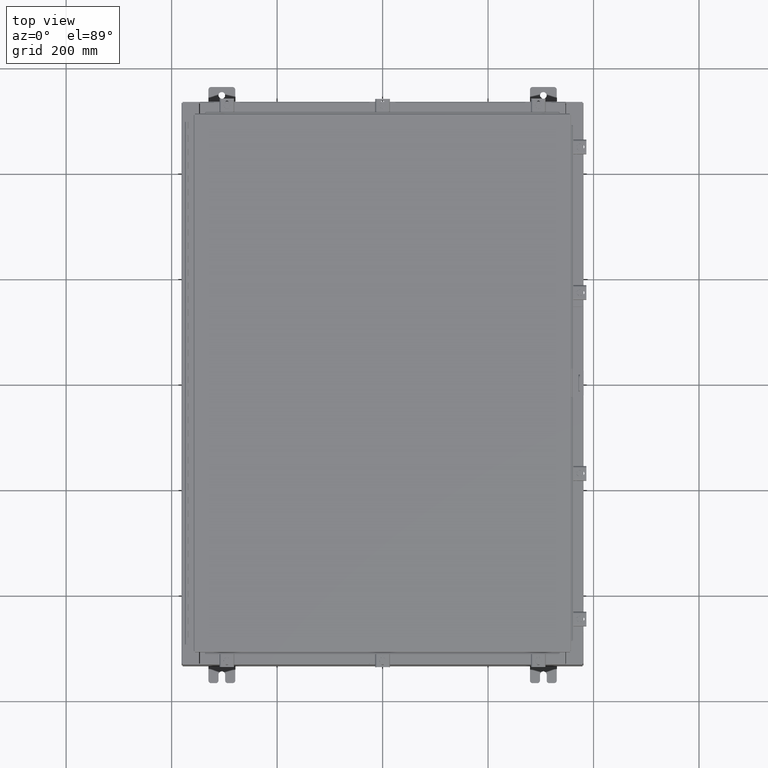
[diagram: clean part render]
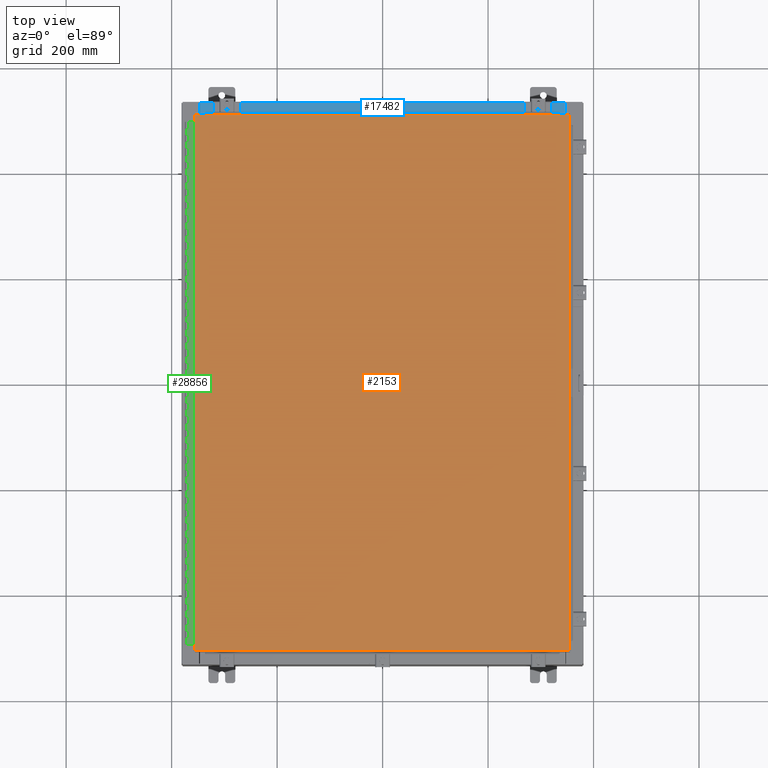
[diagram: same view with three faces highlighted in distinct colors, each labeled with its STEP entity id]
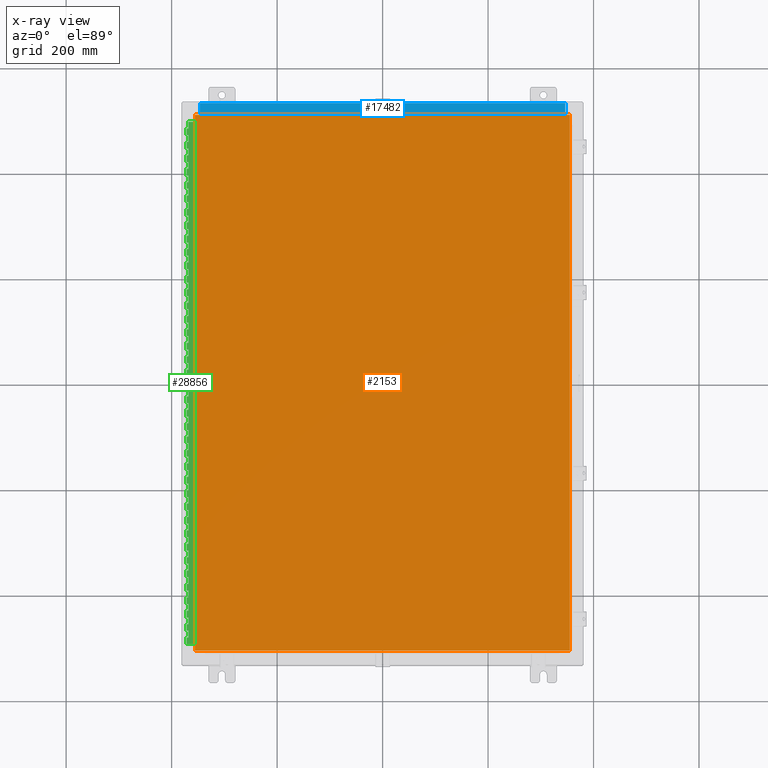
[diagram: x-ray of the same camera — body ghosted, the three highlighted faces saturated]
A machine part, top view with three faces highlighted in distinct colors.
The next image is the same camera in x-ray (body ghosted, the three faces saturated) — at least one of them is partly hidden behind the body in this view.
Their STEP definitions:

[orange] entity #2153 — the highlighted planar face has unit normal (0, 0, -1).
#2153 = ADVANCED_FACE ( 'NONE', ( #9710 ), #47556, .F. ) ;
#6123 = AXIS2_PLACEMENT_3D ( 'NONE', #25495, #36623, #14566 ) ;
#8426 = VERTEX_POINT ( 'NONE', #44274 ) ;
#8880 = CARTESIAN_POINT ( 'NONE',  ( 13.99030000000000100, -20.00630000000000300, -2.048885995248197400E-016 ) ) ;
#9710 = FACE_OUTER_BOUND ( 'NONE', #22228, .T. ) ;
#10287 = EDGE_CURVE ( 'NONE', #45126, #38670, #18421, .T. ) ;
#12556 = DIRECTION ( 'NONE',  ( 0.0000000000000000000, 1.000000000000000000, 0.0000000000000000000 ) ) ;
#13094 = DIRECTION ( 'NONE',  ( 1.000000000000000000, -0.0000000000000000000, -0.0000000000000000000 ) ) ;
#13749 = ORIENTED_EDGE ( 'NONE', *, *, #10287, .T. ) ;
#14337 = LINE ( 'NONE', #8880, #15513 ) ;
#14566 = DIRECTION ( 'NONE',  ( -1.000000000000000000, 0.0000000000000000000, -0.0000000000000000000 ) ) ;
#15513 = VECTOR ( 'NONE', #12556, 39.37007874015748100 ) ;
#18421 = LINE ( 'NONE', #41692, #36893 ) ;
#18713 = CARTESIAN_POINT ( 'NONE',  ( -13.99029999999999800, 20.00630000000000000, -2.048885995248197400E-016 ) ) ;
#20846 = ORIENTED_EDGE ( 'NONE', *, *, #39486, .T. ) ;
#20975 = VECTOR ( 'NONE', #13094, 39.37007874015748100 ) ;
#22228 = EDGE_LOOP ( 'NONE', ( #44646, #20846, #13749, #42907 ) ) ;
#23305 = DIRECTION ( 'NONE',  ( -1.000000000000000000, -0.0000000000000000000, -0.0000000000000000000 ) ) ;
#24478 = VECTOR ( 'NONE', #27024, 39.37007874015748100 ) ;
#25495 = CARTESIAN_POINT ( 'NONE',  ( 0.0000000000000000000, 0.0000000000000000000, 0.0000000000000000000 ) ) ;
#25635 = LINE ( 'NONE', #38178, #24478 ) ;
#27024 = DIRECTION ( 'NONE',  ( 0.0000000000000000000, -1.000000000000000000, 0.0000000000000000000 ) ) ;
#29637 = LINE ( 'NONE', #35162, #20975 ) ;
#33229 = EDGE_CURVE ( 'NONE', #38670, #42584, #25635, .T. ) ;
#33853 = EDGE_CURVE ( 'NONE', #42584, #8426, #29637, .T. ) ;
#35162 = CARTESIAN_POINT ( 'NONE',  ( -13.99029999999999800, -20.00630000000001000, 1.946441695485787500E-015 ) ) ;
#36623 = DIRECTION ( 'NONE',  ( 0.0000000000000000000, 0.0000000000000000000, -1.000000000000000000 ) ) ;
#36893 = VECTOR ( 'NONE', #23305, 39.37007874015748100 ) ;
#38178 = CARTESIAN_POINT ( 'NONE',  ( -13.99029999999999800, 20.00630000000000300, -2.048885995248197400E-016 ) ) ;
#38670 = VERTEX_POINT ( 'NONE', #18713 ) ;
#39486 = EDGE_CURVE ( 'NONE', #8426, #45126, #14337, .T. ) ;
#41692 = CARTESIAN_POINT ( 'NONE',  ( 13.99030000000000100, 20.00630000000000700, 1.946441695485787500E-015 ) ) ;
#42584 = VERTEX_POINT ( 'NONE', #47647 ) ;
#42907 = ORIENTED_EDGE ( 'NONE', *, *, #33229, .T. ) ;
#43945 = CARTESIAN_POINT ( 'NONE',  ( 13.99030000000000100, 20.00630000000000700, 1.946441695485787500E-015 ) ) ;
#44274 = CARTESIAN_POINT ( 'NONE',  ( 13.99030000000000100, -20.00630000000000300, -2.048885995248197400E-016 ) ) ;
#44646 = ORIENTED_EDGE ( 'NONE', *, *, #33853, .T. ) ;
#45126 = VERTEX_POINT ( 'NONE', #43945 ) ;
#47556 = PLANE ( 'NONE',  #6123 ) ;
#47647 = CARTESIAN_POINT ( 'NONE',  ( -13.99029999999999800, -20.00630000000001000, 1.946441695485787500E-015 ) ) ;

[blue] entity #17482 — the highlighted planar face has unit normal (0, 0, 1).
#130 = PLANE ( 'NONE',  #28026 ) ;
#296 = CARTESIAN_POINT ( 'NONE',  ( 0.0000000000000000000, 1.425992975200418500E-014, 4.000000000000000000 ) ) ;
#1087 = LINE ( 'NONE', #13848, #39111 ) ;
#2209 = ORIENTED_EDGE ( 'NONE', *, *, #15584, .F. ) ;
#3233 = VERTEX_POINT ( 'NONE', #25574 ) ;
#3261 = EDGE_LOOP ( 'NONE', ( #46592, #2209, #26346, #21892 ) ) ;
#3710 = CARTESIAN_POINT ( 'NONE',  ( 13.63720000000000400, -0.08769999999999965300, 4.000000000000000000 ) ) ;
#3841 = FACE_OUTER_BOUND ( 'NONE', #3261, .T. ) ;
#5629 = VECTOR ( 'NONE', #31730, 39.37007874015748100 ) ;
#7510 = VERTEX_POINT ( 'NONE', #9844 ) ;
#9378 = LINE ( 'NONE', #24840, #37643 ) ;
#9644 = CARTESIAN_POINT ( 'NONE',  ( 13.63720000000000400, -1.300299999999999800, 4.000000000000004400 ) ) ;
#9844 = CARTESIAN_POINT ( 'NONE',  ( -13.63719999999999800, -1.287299999999999200, 4.000000000000004400 ) ) ;
#10064 = DIRECTION ( 'NONE',  ( -0.0000000000000000000, 1.000000000000000000, -3.566381192773190000E-015 ) ) ;
#10613 = CARTESIAN_POINT ( 'NONE',  ( 13.63720000000000400, -1.287299999999999900, 4.000000000000003600 ) ) ;
#11413 = DIRECTION ( 'NONE',  ( 0.0000000000000000000, -1.000000000000000000, 3.566381192773190000E-015 ) ) ;
#13848 = CARTESIAN_POINT ( 'NONE',  ( -1.756834753793995900E-018, -0.08770000000000000000, 4.000000000000000900 ) ) ;
#14243 = LINE ( 'NONE', #9644, #5629 ) ;
#14977 = LINE ( 'NONE', #10613, #23604 ) ;
#15584 = EDGE_CURVE ( 'NONE', #43037, #7510, #14977, .T. ) ;
#17482 = ADVANCED_FACE ( 'NONE', ( #3841 ), #130, .T. ) ;
#21892 = ORIENTED_EDGE ( 'NONE', *, *, #29258, .T. ) ;
#23604 = VECTOR ( 'NONE', #36385, 39.37007874015748100 ) ;
#24704 = EDGE_CURVE ( 'NONE', #7510, #3233, #9378, .T. ) ;
#24840 = CARTESIAN_POINT ( 'NONE',  ( -13.63719999999999800, -0.07469999999999973900, 4.000000000000000000 ) ) ;
#25574 = CARTESIAN_POINT ( 'NONE',  ( -13.63719999999999800, -0.08770000000000000000, 4.000000000000000000 ) ) ;
#26346 = ORIENTED_EDGE ( 'NONE', *, *, #41059, .F. ) ;
#27994 = CARTESIAN_POINT ( 'NONE',  ( 13.63720000000000400, -1.287299999999999900, 4.000000000000004400 ) ) ;
#28026 = AXIS2_PLACEMENT_3D ( 'NONE', #296, #33496, #11413 ) ;
#29258 = EDGE_CURVE ( 'NONE', #42616, #3233, #1087, .T. ) ;
#31730 = DIRECTION ( 'NONE',  ( -0.0000000000000000000, -1.000000000000000000, 3.566381192773190000E-015 ) ) ;
#33496 = DIRECTION ( 'NONE',  ( 0.0000000000000000000, 3.566381192773190000E-015, 1.000000000000000000 ) ) ;
#36385 = DIRECTION ( 'NONE',  ( -1.000000000000000000, 0.0000000000000000000, 0.0000000000000000000 ) ) ;
#37643 = VECTOR ( 'NONE', #10064, 39.37007874015748100 ) ;
#39111 = VECTOR ( 'NONE', #39600, 39.37007874015748100 ) ;
#39600 = DIRECTION ( 'NONE',  ( -1.000000000000000000, 2.003232330437526000E-017, -7.144290108027600900E-032 ) ) ;
#41059 = EDGE_CURVE ( 'NONE', #42616, #43037, #14243, .T. ) ;
#42616 = VERTEX_POINT ( 'NONE', #3710 ) ;
#43037 = VERTEX_POINT ( 'NONE', #27994 ) ;
#46592 = ORIENTED_EDGE ( 'NONE', *, *, #24704, .F. ) ;

[green] entity #28856 — the highlighted planar face has unit normal (-0, -0, 1).
#38 = CARTESIAN_POINT ( 'NONE',  ( -0.6869999999999982800, 0.5504999999999997700, -15.50000000000000000 ) ) ;
#42 = CARTESIAN_POINT ( 'NONE',  ( -0.6869999999999982800, 0.5504999999999997700, -1.499999999999999800 ) ) ;
#72 = LINE ( 'NONE', #27942, #46763 ) ;
#108 = EDGE_CURVE ( 'NONE', #32518, #23306, #2386, .T. ) ;
#199 = LINE ( 'NONE', #13839, #46880 ) ;
#236 = ORIENTED_EDGE ( 'NONE', *, *, #31686, .T. ) ;
#262 = VECTOR ( 'NONE', #30844, 39.37007874015748100 ) ;
#294 = VECTOR ( 'NONE', #16709, 39.37007874015748100 ) ;
#366 = VERTEX_POINT ( 'NONE', #36084 ) ;
#415 = LINE ( 'NONE', #17519, #18841 ) ;
#436 = VERTEX_POINT ( 'NONE', #21880 ) ;
#446 = CARTESIAN_POINT ( 'NONE',  ( -0.6869999999999978300, 0.6754999999999996600, -39.00000000000000000 ) ) ;
#447 = LINE ( 'NONE', #25203, #28702 ) ;
#456 = CARTESIAN_POINT ( 'NONE',  ( -0.6869999999999978300, 0.6754999999999996600, -39.00000000000000000 ) ) ;
#463 = VERTEX_POINT ( 'NONE', #3709 ) ;
#470 = VERTEX_POINT ( 'NONE', #40591 ) ;
#479 = DIRECTION ( 'NONE',  ( 0.0000000000000000000, -0.0000000000000000000, -1.000000000000000000 ) ) ;
#482 = DIRECTION ( 'NONE',  ( 3.389037039080723100E-015, 1.000000000000000000, -0.0000000000000000000 ) ) ;
#486 = CARTESIAN_POINT ( 'NONE',  ( -0.6869999999999982800, 0.5504999999999997700, -13.50000000000000000 ) ) ;
#504 = CARTESIAN_POINT ( 'NONE',  ( -0.6869999999999978300, 0.6754999999999996600, -22.50000000000000000 ) ) ;
#522 = CARTESIAN_POINT ( 'NONE',  ( -0.6869999999999973900, 0.8004999999999995500, -23.99999999999999600 ) ) ;
#611 = DIRECTION ( 'NONE',  ( -3.389037039080723100E-015, -1.000000000000000000, 0.0000000000000000000 ) ) ;
#640 = VECTOR ( 'NONE', #4559, 39.37007874015748100 ) ;
#716 = DIRECTION ( 'NONE',  ( 0.0000000000000000000, -0.0000000000000000000, -1.000000000000000000 ) ) ;
#842 = CARTESIAN_POINT ( 'NONE',  ( -0.6869999999999982800, 0.5504999999999997700, -32.50000000000000000 ) ) ;
#847 = LINE ( 'NONE', #25833, #29091 ) ;
#867 = ORIENTED_EDGE ( 'NONE', *, *, #19017, .F. ) ;
#931 = LINE ( 'NONE', #3586, #10737 ) ;
#938 = CARTESIAN_POINT ( 'NONE',  ( -0.6869999999999973900, 0.8004999999999995500, -7.000000000000000000 ) ) ;
#1044 = VECTOR ( 'NONE', #3211, 39.37007874015748100 ) ;
#1159 = LINE ( 'NONE', #42322, #8677 ) ;
#1175 = CARTESIAN_POINT ( 'NONE',  ( -0.6869999999999978300, 0.6754999999999996600, -39.00000000000000000 ) ) ;
#1215 = CARTESIAN_POINT ( 'NONE',  ( -0.6869999999999973900, 0.8004999999999995500, -26.50000000000000400 ) ) ;
#1219 = LINE ( 'NONE', #26233, #39253 ) ;
#1337 = ORIENTED_EDGE ( 'NONE', *, *, #13465, .F. ) ;
#1340 = DIRECTION ( 'NONE',  ( -3.389037039080723100E-015, -1.000000000000000000, 0.0000000000000000000 ) ) ;
#1349 = ORIENTED_EDGE ( 'NONE', *, *, #27782, .F. ) ;
#1383 = VECTOR ( 'NONE', #27256, 39.37007874015748100 ) ;
#1466 = EDGE_CURVE ( 'NONE', #3170, #39257, #35131, .T. ) ;
#1476 = VERTEX_POINT ( 'NONE', #22642 ) ;
#1512 = CARTESIAN_POINT ( 'NONE',  ( -0.6869999999999982800, 0.5504999999999997700, -32.50000000000000000 ) ) ;
#1534 = EDGE_CURVE ( 'NONE', #26881, #29792, #23001, .T. ) ;
#1577 = CARTESIAN_POINT ( 'NONE',  ( -0.6869999999999998300, 0.07549999999999991400, -39.00000000000000000 ) ) ;
#1621 = LINE ( 'NONE', #17517, #11430 ) ;
#1655 = VECTOR ( 'NONE', #5246, 39.37007874015748100 ) ;
#1710 = DIRECTION ( 'NONE',  ( 0.0000000000000000000, -0.0000000000000000000, -1.000000000000000000 ) ) ;
#1813 = VECTOR ( 'NONE', #1340, 39.37007874015748100 ) ;
#1833 = CARTESIAN_POINT ( 'NONE',  ( -0.6869999999999973900, 0.8004999999999995500, -13.50000000000000000 ) ) ;
#1853 = VERTEX_POINT ( 'NONE', #43724 ) ;
#1900 = EDGE_CURVE ( 'NONE', #24214, #8345, #18927, .T. ) ;
#1916 = DIRECTION ( 'NONE',  ( -3.389037039080723100E-015, -1.000000000000000000, 0.0000000000000000000 ) ) ;
#1922 = VERTEX_POINT ( 'NONE', #18434 ) ;
#1939 = CARTESIAN_POINT ( 'NONE',  ( -0.6869999999999973900, 0.8004999999999995500, -33.00000000000000000 ) ) ;
#2010 = VERTEX_POINT ( 'NONE', #22776 ) ;
#2093 = LINE ( 'NONE', #47392, #20532 ) ;
#2119 = DIRECTION ( 'NONE',  ( 0.0000000000000000000, 0.0000000000000000000, 1.000000000000000000 ) ) ;
#2298 = DIRECTION ( 'NONE',  ( 3.389037039080723100E-015, 1.000000000000000000, -0.0000000000000000000 ) ) ;
#2311 = VERTEX_POINT ( 'NONE', #33889 ) ;
#2355 = VERTEX_POINT ( 'NONE', #22902 ) ;
#2377 = LINE ( 'NONE', #11932, #9878 ) ;
#2380 = EDGE_CURVE ( 'NONE', #47640, #30193, #447, .T. ) ;
#2386 = LINE ( 'NONE', #27839, #31821 ) ;
#2411 = VERTEX_POINT ( 'NONE', #43735 ) ;
#2568 = CARTESIAN_POINT ( 'NONE',  ( -0.6869999999999982800, 0.5504999999999997700, -8.500000000000000000 ) ) ;
#2640 = CARTESIAN_POINT ( 'NONE',  ( -0.6869999999999978300, 0.6754999999999996600, -26.00000000000000000 ) ) ;
#2784 = EDGE_CURVE ( 'NONE', #46205, #10867, #24594, .T. ) ;
#2821 = VERTEX_POINT ( 'NONE', #40928 ) ;
#2838 = ORIENTED_EDGE ( 'NONE', *, *, #18506, .T. ) ;
#2845 = ORIENTED_EDGE ( 'NONE', *, *, #8183, .T. ) ;
#2851 = ORIENTED_EDGE ( 'NONE', *, *, #46590, .F. ) ;
#2993 = ORIENTED_EDGE ( 'NONE', *, *, #17243, .F. ) ;
#3150 = EDGE_CURVE ( 'NONE', #40474, #22259, #18231, .T. ) ;
#3153 = VERTEX_POINT ( 'NONE', #39765 ) ;
#3169 = VECTOR ( 'NONE', #47022, 39.37007874015748100 ) ;
#3170 = VERTEX_POINT ( 'NONE', #47147 ) ;
#3188 = VECTOR ( 'NONE', #5240, 39.37007874015748100 ) ;
#3211 = DIRECTION ( 'NONE',  ( 0.0000000000000000000, 0.0000000000000000000, 1.000000000000000000 ) ) ;
#3223 = EDGE_CURVE ( 'NONE', #12926, #14068, #24552, .T. ) ;
#3333 = CARTESIAN_POINT ( 'NONE',  ( -0.6869999999999982800, 0.5504999999999997700, -35.50000000000000000 ) ) ;
#3340 = ORIENTED_EDGE ( 'NONE', *, *, #41476, .F. ) ;
#3353 = EDGE_CURVE ( 'NONE', #37540, #9426, #9038, .T. ) ;
#3358 = CARTESIAN_POINT ( 'NONE',  ( -0.6869999999999978300, 0.6754999999999996600, -38.50000000000000000 ) ) ;
#3380 = CARTESIAN_POINT ( 'NONE',  ( -0.6869999999999978300, 0.6754999999999996600, -35.00000000000000000 ) ) ;
#3511 = EDGE_CURVE ( 'NONE', #39510, #26754, #31507, .T. ) ;
#3545 = DIRECTION ( 'NONE',  ( 3.389037039080723100E-015, 1.000000000000000000, -0.0000000000000000000 ) ) ;
#3572 = CARTESIAN_POINT ( 'NONE',  ( -0.6869999999999978300, 0.6754999999999996600, -39.00000000000000000 ) ) ;
#3575 = CARTESIAN_POINT ( 'NONE',  ( -0.6869999999999978300, 0.6754999999999996600, -10.50000000000000000 ) ) ;
#3583 = LINE ( 'NONE', #21726, #30681 ) ;
#3586 = CARTESIAN_POINT ( 'NONE',  ( -0.6869999999999978300, 0.6754999999999996600, -39.00000000000000000 ) ) ;
#3594 = EDGE_CURVE ( 'NONE', #463, #39165, #18184, .T. ) ;
#3627 = CARTESIAN_POINT ( 'NONE',  ( -0.6869999999999978300, 0.6754999999999996600, -39.00000000000000000 ) ) ;
#3654 = LINE ( 'NONE', #10937, #41703 ) ;
#3708 = CARTESIAN_POINT ( 'NONE',  ( -0.6869999999999982800, 0.5504999999999997700, -2.500000000000000000 ) ) ;
#3709 = CARTESIAN_POINT ( 'NONE',  ( -0.6869999999999978300, 0.6754999999999996600, -16.50000000000000000 ) ) ;
#3738 = CARTESIAN_POINT ( 'NONE',  ( -0.6869999999999982800, 0.5504999999999997700, -0.5000000000000000000 ) ) ;
#3857 = LINE ( 'NONE', #11360, #32100 ) ;
#3885 = DIRECTION ( 'NONE',  ( 0.0000000000000000000, -0.0000000000000000000, -1.000000000000000000 ) ) ;
#3892 = VERTEX_POINT ( 'NONE', #40523 ) ;
#4012 = CARTESIAN_POINT ( 'NONE',  ( -0.6869999999999973900, 0.8004999999999995500, -16.00000000000000000 ) ) ;
#4030 = LINE ( 'NONE', #43777, #22438 ) ;
#4049 = ORIENTED_EDGE ( 'NONE', *, *, #38139, .F. ) ;
#4136 = CARTESIAN_POINT ( 'NONE',  ( -0.6869999999999978300, 0.6754999999999996600, -10.00000000000000000 ) ) ;
#4140 = VERTEX_POINT ( 'NONE', #10493 ) ;
#4172 = DIRECTION ( 'NONE',  ( 0.0000000000000000000, 0.0000000000000000000, 1.000000000000000000 ) ) ;
#4207 = VECTOR ( 'NONE', #33664, 39.37007874015748100 ) ;
#4262 = LINE ( 'NONE', #31766, #42285 ) ;
#4274 = LINE ( 'NONE', #15004, #22688 ) ;
#4317 = VERTEX_POINT ( 'NONE', #22847 ) ;
#4420 = DIRECTION ( 'NONE',  ( 3.389037039080723100E-015, 1.000000000000000000, -0.0000000000000000000 ) ) ;
#4497 = CARTESIAN_POINT ( 'NONE',  ( -0.6869999999999978300, 0.6754999999999996600, -6.499999999999999100 ) ) ;
#4501 = ORIENTED_EDGE ( 'NONE', *, *, #28848, .F. ) ;
#4546 = DIRECTION ( 'NONE',  ( -3.389037039080723100E-015, -1.000000000000000000, 0.0000000000000000000 ) ) ;
#4559 = DIRECTION ( 'NONE',  ( 0.0000000000000000000, -0.0000000000000000000, -1.000000000000000000 ) ) ;
#4566 = ORIENTED_EDGE ( 'NONE', *, *, #5504, .T. ) ;
#4571 = VECTOR ( 'NONE', #30928, 39.37007874015748100 ) ;
#4574 = DIRECTION ( 'NONE',  ( 0.0000000000000000000, 0.0000000000000000000, 1.000000000000000000 ) ) ;
#4674 = CARTESIAN_POINT ( 'NONE',  ( -0.6869999999999982800, 0.5504999999999997700, -5.000000000000000000 ) ) ;
#4683 = DIRECTION ( 'NONE',  ( 3.389037039080723100E-015, 1.000000000000000000, -0.0000000000000000000 ) ) ;
#4694 = CARTESIAN_POINT ( 'NONE',  ( -0.6869999999999982800, 0.5504999999999997700, -17.00000000000000000 ) ) ;
#4737 = CARTESIAN_POINT ( 'NONE',  ( -0.6870000000000022800, -0.6245000000000003900, -39.00000000000000000 ) ) ;
#4739 = CARTESIAN_POINT ( 'NONE',  ( -0.6869999999999978300, 0.6754999999999996600, -8.500000000000000000 ) ) ;
#4799 = CARTESIAN_POINT ( 'NONE',  ( -0.6869999999999982800, 0.5504999999999997700, -3.500000000000000000 ) ) ;
#4853 = CARTESIAN_POINT ( 'NONE',  ( -0.6869999999999982800, 0.5504999999999997700, -22.50000000000000000 ) ) ;
#4902 = DIRECTION ( 'NONE',  ( 0.0000000000000000000, 0.0000000000000000000, 1.000000000000000000 ) ) ;
#5020 = LINE ( 'NONE', #33278, #23438 ) ;
#5022 = CARTESIAN_POINT ( 'NONE',  ( -0.6869999999999982800, 0.5504999999999997700, -18.50000000000000000 ) ) ;
#5050 = VECTOR ( 'NONE', #30653, 39.37007874015748100 ) ;
#5071 = EDGE_CURVE ( 'NONE', #11983, #38117, #43051, .T. ) ;
#5102 = VERTEX_POINT ( 'NONE', #20372 ) ;
#5123 = VERTEX_POINT ( 'NONE', #31520 ) ;
#5147 = VERTEX_POINT ( 'NONE', #38907 ) ;
#5163 = DIRECTION ( 'NONE',  ( 0.0000000000000000000, -0.0000000000000000000, -1.000000000000000000 ) ) ;
#5183 = CARTESIAN_POINT ( 'NONE',  ( -0.6869999999999982800, 0.5504999999999997700, -21.50000000000000400 ) ) ;
#5192 = VECTOR ( 'NONE', #1710, 39.37007874015748100 ) ;
#5240 = DIRECTION ( 'NONE',  ( 0.0000000000000000000, -0.0000000000000000000, -1.000000000000000000 ) ) ;
#5246 = DIRECTION ( 'NONE',  ( 3.389037039080723100E-015, 1.000000000000000000, -0.0000000000000000000 ) ) ;
#5282 = EDGE_CURVE ( 'NONE', #27697, #45570, #36125, .T. ) ;
#5304 = CARTESIAN_POINT ( 'NONE',  ( -0.6869999999999982800, 0.5504999999999997700, -14.99999999999999800 ) ) ;
#5325 = VECTOR ( 'NONE', #12756, 39.37007874015748100 ) ;
#5360 = EDGE_CURVE ( 'NONE', #30806, #25942, #2093, .T. ) ;
#5400 = ORIENTED_EDGE ( 'NONE', *, *, #38121, .F. ) ;
#5405 = LINE ( 'NONE', #1833, #33628 ) ;
#5435 = EDGE_CURVE ( 'NONE', #11708, #2821, #8471, .T. ) ;
#5504 = EDGE_CURVE ( 'NONE', #46101, #436, #17071, .T. ) ;
#5511 = CARTESIAN_POINT ( 'NONE',  ( -0.6869999999999978300, 0.6754999999999996600, -6.000000000000000900 ) ) ;
#5571 = DIRECTION ( 'NONE',  ( 0.0000000000000000000, 0.0000000000000000000, 1.000000000000000000 ) ) ;
#5591 = LINE ( 'NONE', #45212, #43587 ) ;
#5594 = VERTEX_POINT ( 'NONE', #2640 ) ;
#5603 = CARTESIAN_POINT ( 'NONE',  ( -0.6869999999999978300, 0.6754999999999996600, -22.00000000000000000 ) ) ;
#5623 = CARTESIAN_POINT ( 'NONE',  ( -0.6869999999999973900, 0.8004999999999995500, -37.00000000000000000 ) ) ;
#5670 = EDGE_CURVE ( 'NONE', #15506, #39067, #28601, .T. ) ;
#5768 = DIRECTION ( 'NONE',  ( 3.389037039080723100E-015, 1.000000000000000000, -0.0000000000000000000 ) ) ;
#5851 = DIRECTION ( 'NONE',  ( 0.0000000000000000000, -0.0000000000000000000, -1.000000000000000000 ) ) ;
#5868 = VECTOR ( 'NONE', #42486, 39.37007874015748100 ) ;
#5887 = CARTESIAN_POINT ( 'NONE',  ( -0.6869999999999978300, 0.6754999999999996600, -38.00000000000000000 ) ) ;
#5988 = VERTEX_POINT ( 'NONE', #15852 ) ;
#5990 = EDGE_CURVE ( 'NONE', #9867, #46489, #25657, .T. ) ;
#6077 = CARTESIAN_POINT ( 'NONE',  ( -0.6869999999999973900, 0.8004999999999995500, -7.499999999999999100 ) ) ;
#6092 = LINE ( 'NONE', #38030, #44100 ) ;
#6127 = CARTESIAN_POINT ( 'NONE',  ( -0.6869999999999978300, 0.6754999999999996600, -2.000000000000000000 ) ) ;
#6146 = VECTOR ( 'NONE', #42444, 39.37007874015748100 ) ;
#6191 = EDGE_CURVE ( 'NONE', #19537, #13326, #28552, .T. ) ;
#6279 = EDGE_CURVE ( 'NONE', #39985, #40103, #32571, .T. ) ;
#6334 = LINE ( 'NONE', #43458, #24732 ) ;
#6357 = VECTOR ( 'NONE', #9588, 39.37007874015748100 ) ;
#6385 = LINE ( 'NONE', #32210, #15029 ) ;
#6424 = CARTESIAN_POINT ( 'NONE',  ( -0.6869999999999982800, 0.5504999999999997700, -13.50000000000000000 ) ) ;
#6488 = LINE ( 'NONE', #19809, #15131 ) ;
#6513 = VECTOR ( 'NONE', #11264, 39.37007874015748100 ) ;
#6529 = VECTOR ( 'NONE', #35635, 39.37007874015748100 ) ;
#6544 = VECTOR ( 'NONE', #43606, 39.37007874015748100 ) ;
#6572 = LINE ( 'NONE', #26871, #41155 ) ;
#6714 = VECTOR ( 'NONE', #2298, 39.37007874015748100 ) ;
#6764 = CARTESIAN_POINT ( 'NONE',  ( -0.6869999999999973900, 0.8004999999999995500, -25.50000000000000400 ) ) ;
#6836 = VERTEX_POINT ( 'NONE', #21851 ) ;
#6912 = CARTESIAN_POINT ( 'NONE',  ( -0.6869999999999982800, 0.5504999999999997700, -21.50000000000000400 ) ) ;
#7007 = VECTOR ( 'NONE', #45891, 39.37007874015748100 ) ;
#7070 = ORIENTED_EDGE ( 'NONE', *, *, #25046, .F. ) ;
#7191 = EDGE_CURVE ( 'NONE', #34120, #32968, #35952, .T. ) ;
#7205 = ORIENTED_EDGE ( 'NONE', *, *, #19317, .T. ) ;
#7255 = VERTEX_POINT ( 'NONE', #4739 ) ;
#7259 = DIRECTION ( 'NONE',  ( -3.389037039080723100E-015, -1.000000000000000000, 0.0000000000000000000 ) ) ;
#7265 = CARTESIAN_POINT ( 'NONE',  ( -0.6869999999999978300, 0.6754999999999996600, -5.500000000000000000 ) ) ;
#7267 = ORIENTED_EDGE ( 'NONE', *, *, #37332, .T. ) ;
#7359 = ORIENTED_EDGE ( 'NONE', *, *, #13109, .F. ) ;
#7360 = VECTOR ( 'NONE', #27392, 39.37007874015748100 ) ;
#7406 = VECTOR ( 'NONE', #43842, 39.37007874015748100 ) ;
#7411 = VERTEX_POINT ( 'NONE', #9691 ) ;
#7412 = DIRECTION ( 'NONE',  ( 0.0000000000000000000, -0.0000000000000000000, -1.000000000000000000 ) ) ;
#7473 = CARTESIAN_POINT ( 'NONE',  ( -0.6869999999999973900, 0.8004999999999995500, -12.49999999999999800 ) ) ;
#7559 = CARTESIAN_POINT ( 'NONE',  ( -0.6869999999999978300, 0.6754999999999996600, -34.00000000000000000 ) ) ;
#7561 = VECTOR ( 'NONE', #25042, 39.37007874015748100 ) ;
#7599 = CARTESIAN_POINT ( 'NONE',  ( -0.6869999999999982800, 0.5504999999999997700, -25.50000000000000400 ) ) ;
#7620 = EDGE_CURVE ( 'NONE', #30519, #436, #38268, .T. ) ;
#7677 = LINE ( 'NONE', #33184, #6513 ) ;
#7686 = EDGE_CURVE ( 'NONE', #7411, #38636, #7677, .T. ) ;
#7708 = VECTOR ( 'NONE', #10117, 39.37007874015748100 ) ;
#7753 = EDGE_CURVE ( 'NONE', #5988, #21772, #23778, .T. ) ;
#7815 = ORIENTED_EDGE ( 'NONE', *, *, #1534, .F. ) ;
#7851 = CARTESIAN_POINT ( 'NONE',  ( -0.6869999999999978300, 0.6754999999999996600, -17.50000000000000000 ) ) ;
#7905 = CARTESIAN_POINT ( 'NONE',  ( -0.6869999999999982800, 0.5504999999999997700, -6.499999999999999100 ) ) ;
#8000 = CARTESIAN_POINT ( 'NONE',  ( -0.6869999999999978300, 0.6754999999999996600, -28.99999999999999600 ) ) ;
#8042 = EDGE_CURVE ( 'NONE', #43550, #18989, #20871, .T. ) ;
#8063 = VERTEX_POINT ( 'NONE', #36364 ) ;
#8097 = ORIENTED_EDGE ( 'NONE', *, *, #23330, .F. ) ;
#8173 = DIRECTION ( 'NONE',  ( 3.389037039080723100E-015, 1.000000000000000000, -0.0000000000000000000 ) ) ;
#8183 = EDGE_CURVE ( 'NONE', #40474, #32773, #44495, .T. ) ;
#8212 = VERTEX_POINT ( 'NONE', #16592 ) ;
#8276 = EDGE_CURVE ( 'NONE', #13067, #11983, #10484, .T. ) ;
#8284 = PLANE ( 'NONE',  #38632 ) ;
#8334 = CARTESIAN_POINT ( 'NONE',  ( -0.6869999999999978300, 0.6754999999999996600, -17.99999999999999600 ) ) ;
#8345 = VERTEX_POINT ( 'NONE', #3380 ) ;
#8384 = DIRECTION ( 'NONE',  ( -3.389037039080723100E-015, -1.000000000000000000, 0.0000000000000000000 ) ) ;
#8421 = ORIENTED_EDGE ( 'NONE', *, *, #42583, .F. ) ;
#8441 = DIRECTION ( 'NONE',  ( 1.000000000000000000, -3.369016658928398200E-015, 0.0000000000000000000 ) ) ;
#8471 = LINE ( 'NONE', #38, #36677 ) ;
#8551 = DIRECTION ( 'NONE',  ( 0.0000000000000000000, -0.0000000000000000000, -1.000000000000000000 ) ) ;
#8574 = VERTEX_POINT ( 'NONE', #15940 ) ;
#8646 = LINE ( 'NONE', #47198, #14945 ) ;
#8677 = VECTOR ( 'NONE', #38645, 39.37007874015748100 ) ;
#8699 = DIRECTION ( 'NONE',  ( -3.389037039080723100E-015, -1.000000000000000000, 0.0000000000000000000 ) ) ;
#8757 = LINE ( 'NONE', #38226, #27183 ) ;
#8779 = DIRECTION ( 'NONE',  ( 0.0000000000000000000, 0.0000000000000000000, 1.000000000000000000 ) ) ;
#8852 = LINE ( 'NONE', #21344, #35897 ) ;
#8911 = DIRECTION ( 'NONE',  ( 0.0000000000000000000, -0.0000000000000000000, -1.000000000000000000 ) ) ;
#9025 = ORIENTED_EDGE ( 'NONE', *, *, #1900, .F. ) ;
#9029 = CARTESIAN_POINT ( 'NONE',  ( -0.6869999999999973900, 0.8004999999999995500, -21.00000000000000000 ) ) ;
#9038 = LINE ( 'NONE', #44584, #27457 ) ;
#9100 = VERTEX_POINT ( 'NONE', #15252 ) ;
#9127 = DIRECTION ( 'NONE',  ( 3.389037039080723100E-015, 1.000000000000000000, -0.0000000000000000000 ) ) ;
#9140 = VECTOR ( 'NONE', #10472, 39.37007874015748100 ) ;
#9156 = ORIENTED_EDGE ( 'NONE', *, *, #17110, .F. ) ;
#9162 = VECTOR ( 'NONE', #44203, 39.37007874015748100 ) ;
#9171 = LINE ( 'NONE', #31504, #38584 ) ;
#9172 = CARTESIAN_POINT ( 'NONE',  ( -0.6869999999999973900, 0.8004999999999995500, -14.00000000000000000 ) ) ;
#9269 = DIRECTION ( 'NONE',  ( 0.0000000000000000000, 0.0000000000000000000, 1.000000000000000000 ) ) ;
#9287 = CARTESIAN_POINT ( 'NONE',  ( -0.6869999999999978300, 0.6754999999999996600, -39.00000000000000000 ) ) ;
#9312 = EDGE_CURVE ( 'NONE', #35038, #39978, #39284, .T. ) ;
#9361 = ORIENTED_EDGE ( 'NONE', *, *, #23817, .F. ) ;
#9381 = EDGE_CURVE ( 'NONE', #44525, #2010, #72, .T. ) ;
#9382 = VERTEX_POINT ( 'NONE', #35353 ) ;
#9426 = VERTEX_POINT ( 'NONE', #9892 ) ;
#9503 = CARTESIAN_POINT ( 'NONE',  ( -0.6869999999999982800, 0.5504999999999997700, -2.000000000000000000 ) ) ;
#9520 = CARTESIAN_POINT ( 'NONE',  ( -0.6869999999999982800, 0.5504999999999997700, -24.50000000000000000 ) ) ;
#9583 = EDGE_CURVE ( 'NONE', #4140, #1476, #11608, .T. ) ;
#9584 = EDGE_CURVE ( 'NONE', #16711, #46489, #30053, .T. ) ;
#9588 = DIRECTION ( 'NONE',  ( -3.389037039080723100E-015, -1.000000000000000000, 0.0000000000000000000 ) ) ;
#9605 = EDGE_CURVE ( 'NONE', #44288, #24214, #46182, .T. ) ;
#9654 = CARTESIAN_POINT ( 'NONE',  ( -0.6869999999999982800, 0.5504999999999997700, -28.00000000000000000 ) ) ;
#9691 = CARTESIAN_POINT ( 'NONE',  ( -0.6869999999999978300, 0.6754999999999996600, -33.50000000000000000 ) ) ;
#9697 = LINE ( 'NONE', #27827, #29270 ) ;
#9839 = VERTEX_POINT ( 'NONE', #9520 ) ;
#9867 = VERTEX_POINT ( 'NONE', #39295 ) ;
#9878 = VECTOR ( 'NONE', #15648, 39.37007874015748100 ) ;
#9892 = CARTESIAN_POINT ( 'NONE',  ( -0.6869999999999978300, 0.6754999999999996600, -36.00000000000000000 ) ) ;
#9909 = ORIENTED_EDGE ( 'NONE', *, *, #35200, .F. ) ;
#9928 = EDGE_CURVE ( 'NONE', #25942, #39978, #6385, .T. ) ;
#10061 = DIRECTION ( 'NONE',  ( 0.0000000000000000000, 0.0000000000000000000, 1.000000000000000000 ) ) ;
#10108 = DIRECTION ( 'NONE',  ( 3.389037039080723100E-015, 1.000000000000000000, -0.0000000000000000000 ) ) ;
#10117 = DIRECTION ( 'NONE',  ( 0.0000000000000000000, -0.0000000000000000000, -1.000000000000000000 ) ) ;
#10124 = VERTEX_POINT ( 'NONE', #25719 ) ;
#10144 = EDGE_CURVE ( 'NONE', #18860, #25029, #26530, .T. ) ;
#10153 = VECTOR ( 'NONE', #36308, 39.37007874015748100 ) ;
#10196 = VERTEX_POINT ( 'NONE', #37193 ) ;
#10219 = CARTESIAN_POINT ( 'NONE',  ( -0.6869999999999998300, 0.07549999999999991400, -39.00000000000000000 ) ) ;
#10221 = VECTOR ( 'NONE', #716, 39.37007874015748100 ) ;
#10228 = ORIENTED_EDGE ( 'NONE', *, *, #24567, .T. ) ;
#10235 = ORIENTED_EDGE ( 'NONE', *, *, #31126, .T. ) ;
#10240 = CARTESIAN_POINT ( 'NONE',  ( -0.6869999999999982800, 0.5504999999999997700, -2.999999999999999600 ) ) ;
#10245 = CARTESIAN_POINT ( 'NONE',  ( -0.6869999999999998300, 0.07549999999999991400, 0.0000000000000000000 ) ) ;
#10277 = LINE ( 'NONE', #19293, #18907 ) ;
#10291 = DIRECTION ( 'NONE',  ( -3.389037039080723100E-015, -1.000000000000000000, 0.0000000000000000000 ) ) ;
#10297 = CARTESIAN_POINT ( 'NONE',  ( -0.6869999999999982800, 0.5504999999999997700, -29.99999999999999600 ) ) ;
#10327 = ORIENTED_EDGE ( 'NONE', *, *, #25116, .F. ) ;
#10423 = EDGE_CURVE ( 'NONE', #19006, #43795, #14981, .T. ) ;
#10439 = CARTESIAN_POINT ( 'NONE',  ( -0.6869999999999973900, 0.8004999999999995500, -20.50000000000000400 ) ) ;
#10471 = DIRECTION ( 'NONE',  ( -3.389037039080723100E-015, -1.000000000000000000, 0.0000000000000000000 ) ) ;
#10472 = DIRECTION ( 'NONE',  ( 0.0000000000000000000, 0.0000000000000000000, 1.000000000000000000 ) ) ;
#10484 = LINE ( 'NONE', #36085, #28922 ) ;
#10493 = CARTESIAN_POINT ( 'NONE',  ( -0.6869999999999982800, 0.5504999999999997700, -10.50000000000000000 ) ) ;
#10564 = CARTESIAN_POINT ( 'NONE',  ( -0.6869999999999978300, 0.6754999999999996600, -11.99999999999999800 ) ) ;
#10584 = VERTEX_POINT ( 'NONE', #10240 ) ;
#10586 = DIRECTION ( 'NONE',  ( 0.0000000000000000000, -0.0000000000000000000, -1.000000000000000000 ) ) ;
#10665 = ORIENTED_EDGE ( 'NONE', *, *, #22884, .F. ) ;
#10737 = VECTOR ( 'NONE', #29344, 39.37007874015748100 ) ;
#10773 = VECTOR ( 'NONE', #35015, 39.37007874015748100 ) ;
#10840 = LINE ( 'NONE', #14166, #1044 ) ;
#10852 = DIRECTION ( 'NONE',  ( 0.0000000000000000000, -0.0000000000000000000, -1.000000000000000000 ) ) ;
#10865 = LINE ( 'NONE', #36600, #7406 ) ;
#10867 = VERTEX_POINT ( 'NONE', #45177 ) ;
#10937 = CARTESIAN_POINT ( 'NONE',  ( -0.6869999999999973900, 0.8004999999999995500, -9.500000000000000000 ) ) ;
#10965 = VECTOR ( 'NONE', #11176, 39.37007874015748100 ) ;
#11008 = ORIENTED_EDGE ( 'NONE', *, *, #11256, .F. ) ;
#11019 = ORIENTED_EDGE ( 'NONE', *, *, #29537, .F. ) ;
#11129 = EDGE_CURVE ( 'NONE', #18989, #470, #26439, .T. ) ;
#11154 = VECTOR ( 'NONE', #1916, 39.37007874015748100 ) ;
#11175 = VECTOR ( 'NONE', #13372, 39.37007874015748100 ) ;
#11176 = DIRECTION ( 'NONE',  ( -3.389037039080723100E-015, -1.000000000000000000, 0.0000000000000000000 ) ) ;
#11203 = DIRECTION ( 'NONE',  ( -3.389037039080723100E-015, -1.000000000000000000, 0.0000000000000000000 ) ) ;
#11214 = CARTESIAN_POINT ( 'NONE',  ( -0.6869999999999978300, 0.6754999999999996600, -19.00000000000000000 ) ) ;
#11256 = EDGE_CURVE ( 'NONE', #45570, #21229, #36786, .T. ) ;
#11264 = DIRECTION ( 'NONE',  ( -3.389037039080723100E-015, -1.000000000000000000, 0.0000000000000000000 ) ) ;
#11275 = CARTESIAN_POINT ( 'NONE',  ( -0.6869999999999982800, 0.5504999999999997700, -1.000000000000000000 ) ) ;
#11296 = ORIENTED_EDGE ( 'NONE', *, *, #10423, .F. ) ;
#11360 = CARTESIAN_POINT ( 'NONE',  ( -0.6869999999999973900, 0.8004999999999995500, -4.000000000000000000 ) ) ;
#11430 = VECTOR ( 'NONE', #43304, 39.37007874015748100 ) ;
#11525 = ORIENTED_EDGE ( 'NONE', *, *, #37315, .F. ) ;
#11554 = CARTESIAN_POINT ( 'NONE',  ( -0.6869999999999982800, 0.5504999999999997700, -37.00000000000000000 ) ) ;
#11608 = LINE ( 'NONE', #11788, #640 ) ;
#11629 = LINE ( 'NONE', #19695, #1813 ) ;
#11636 = CARTESIAN_POINT ( 'NONE',  ( -0.6869999999999982800, 0.5504999999999997700, -23.50000000000000000 ) ) ;
#11649 = LINE ( 'NONE', #46278, #39879 ) ;
#11708 = VERTEX_POINT ( 'NONE', #19996 ) ;
#11788 = CARTESIAN_POINT ( 'NONE',  ( -0.6869999999999982800, 0.5504999999999997700, -10.50000000000000000 ) ) ;
#11932 = CARTESIAN_POINT ( 'NONE',  ( -0.6869999999999982800, 0.5504999999999997700, -26.50000000000000400 ) ) ;
#11983 = VERTEX_POINT ( 'NONE', #18034 ) ;
#12029 = LINE ( 'NONE', #1215, #30475 ) ;
#12030 = CARTESIAN_POINT ( 'NONE',  ( -0.6869999999999982800, 0.5504999999999997700, -17.50000000000000000 ) ) ;
#12131 = CARTESIAN_POINT ( 'NONE',  ( -0.6869999999999978300, 0.6754999999999996600, -5.000000000000000000 ) ) ;
#12152 = LINE ( 'NONE', #45839, #30594 ) ;
#12194 = VERTEX_POINT ( 'NONE', #4694 ) ;
#12202 = DIRECTION ( 'NONE',  ( -3.389037039080723100E-015, -1.000000000000000000, 0.0000000000000000000 ) ) ;
#12206 = VECTOR ( 'NONE', #482, 39.37007874015748100 ) ;
#12210 = EDGE_CURVE ( 'NONE', #34402, #1922, #36040, .T. ) ;
#12211 = EDGE_CURVE ( 'NONE', #14068, #16711, #17575, .T. ) ;
#12298 = ORIENTED_EDGE ( 'NONE', *, *, #8042, .F. ) ;
#12351 = CARTESIAN_POINT ( 'NONE',  ( -0.6869999999999982800, 0.5504999999999997700, -34.00000000000000000 ) ) ;
#12539 = DIRECTION ( 'NONE',  ( 0.0000000000000000000, -0.0000000000000000000, -1.000000000000000000 ) ) ;
#12566 = VERTEX_POINT ( 'NONE', #37638 ) ;
#12625 = EDGE_CURVE ( 'NONE', #47227, #16298, #29664, .T. ) ;
#12756 = DIRECTION ( 'NONE',  ( 0.0000000000000000000, 0.0000000000000000000, 1.000000000000000000 ) ) ;
#12888 = CARTESIAN_POINT ( 'NONE',  ( -0.6869999999999982800, 0.5504999999999997700, -31.50000000000000400 ) ) ;
#12926 = VERTEX_POINT ( 'NONE', #504 ) ;
#12946 = VERTEX_POINT ( 'NONE', #11636 ) ;
#12966 = CARTESIAN_POINT ( 'NONE',  ( -0.6869999999999973900, 0.8004999999999995500, -32.00000000000000000 ) ) ;
#12973 = LINE ( 'NONE', #29309, #32562 ) ;
#12997 = LINE ( 'NONE', #20639, #41242 ) ;
#12999 = CARTESIAN_POINT ( 'NONE',  ( -0.6869999999999973900, 0.8004999999999995500, -16.50000000000000000 ) ) ;
#13012 = CARTESIAN_POINT ( 'NONE',  ( -0.6869999999999978300, 0.6754999999999996600, -31.50000000000000400 ) ) ;
#13067 = VERTEX_POINT ( 'NONE', #5022 ) ;
#13106 = DIRECTION ( 'NONE',  ( -3.389037039080723100E-015, -1.000000000000000000, 0.0000000000000000000 ) ) ;
#13109 = EDGE_CURVE ( 'NONE', #39985, #47640, #20963, .T. ) ;
#13115 = CARTESIAN_POINT ( 'NONE',  ( -0.6869999999999982800, 0.5504999999999997700, -3.500000000000000000 ) ) ;
#13150 = VERTEX_POINT ( 'NONE', #5511 ) ;
#13206 = CARTESIAN_POINT ( 'NONE',  ( -0.6869999999999978300, 0.6754999999999996600, -14.00000000000000000 ) ) ;
#13248 = EDGE_CURVE ( 'NONE', #10867, #5147, #4262, .T. ) ;
#13252 = ORIENTED_EDGE ( 'NONE', *, *, #24990, .F. ) ;
#13291 = DIRECTION ( 'NONE',  ( 3.389037039080723100E-015, 1.000000000000000000, -0.0000000000000000000 ) ) ;
#13326 = VERTEX_POINT ( 'NONE', #10297 ) ;
#13330 = ORIENTED_EDGE ( 'NONE', *, *, #41696, .F. ) ;
#13367 = DIRECTION ( 'NONE',  ( 0.0000000000000000000, -0.0000000000000000000, -1.000000000000000000 ) ) ;
#13372 = DIRECTION ( 'NONE',  ( -3.389037039080723100E-015, -1.000000000000000000, 0.0000000000000000000 ) ) ;
#13387 = ORIENTED_EDGE ( 'NONE', *, *, #37546, .F. ) ;
#13406 = VERTEX_POINT ( 'NONE', #3358 ) ;
#13465 = EDGE_CURVE ( 'NONE', #45816, #30806, #3654, .T. ) ;
#13839 = CARTESIAN_POINT ( 'NONE',  ( -0.6869999999999973900, 0.8004999999999995500, -35.50000000000000000 ) ) ;
#13843 = CARTESIAN_POINT ( 'NONE',  ( -0.6869999999999982800, 0.5504999999999997700, -0.5000000000000000000 ) ) ;
#13931 = ORIENTED_EDGE ( 'NONE', *, *, #27724, .F. ) ;
#13970 = VECTOR ( 'NONE', #8779, 39.37007874015748100 ) ;
#13972 = VECTOR ( 'NONE', #38766, 39.37007874015748100 ) ;
#14005 = CARTESIAN_POINT ( 'NONE',  ( -0.6869999999999982800, 0.5504999999999997700, -14.49999999999999800 ) ) ;
#14022 = VECTOR ( 'NONE', #15767, 39.37007874015748100 ) ;
#14068 = VERTEX_POINT ( 'NONE', #19867 ) ;
#14166 = CARTESIAN_POINT ( 'NONE',  ( -0.6869999999999978300, 0.6754999999999996600, -39.00000000000000000 ) ) ;
#14193 = ORIENTED_EDGE ( 'NONE', *, *, #35679, .F. ) ;
#14201 = EDGE_CURVE ( 'NONE', #37792, #366, #11649, .T. ) ;
#14239 = CARTESIAN_POINT ( 'NONE',  ( -0.6869999999999973900, 0.8004999999999995500, -2.500000000000000000 ) ) ;
#14277 = ORIENTED_EDGE ( 'NONE', *, *, #39479, .F. ) ;
#14320 = LINE ( 'NONE', #22945, #22956 ) ;
#14427 = ORIENTED_EDGE ( 'NONE', *, *, #14201, .T. ) ;
#14456 = CARTESIAN_POINT ( 'NONE',  ( -0.6869999999999978300, 0.6754999999999996600, -0.5000000000000000000 ) ) ;
#14513 = CARTESIAN_POINT ( 'NONE',  ( -0.6869999999999978300, 0.6754999999999996600, -39.00000000000000000 ) ) ;
#14617 = LINE ( 'NONE', #6077, #23255 ) ;
#14618 = LINE ( 'NONE', #18830, #23256 ) ;
#14651 = ORIENTED_EDGE ( 'NONE', *, *, #23754, .F. ) ;
#14776 = ORIENTED_EDGE ( 'NONE', *, *, #5670, .T. ) ;
#14793 = CARTESIAN_POINT ( 'NONE',  ( -0.6869999999999973900, 0.8004999999999995500, -31.50000000000000400 ) ) ;
#14812 = ORIENTED_EDGE ( 'NONE', *, *, #42879, .F. ) ;
#14945 = VECTOR ( 'NONE', #47048, 39.37007874015748100 ) ;
#14981 = LINE ( 'NONE', #34758, #5192 ) ;
#15004 = CARTESIAN_POINT ( 'NONE',  ( -0.6869999999999982800, 0.5504999999999997700, -25.50000000000000400 ) ) ;
#15026 = VERTEX_POINT ( 'NONE', #44077 ) ;
#15029 = VECTOR ( 'NONE', #35915, 39.37007874015748100 ) ;
#15034 = ORIENTED_EDGE ( 'NONE', *, *, #40702, .T. ) ;
#15058 = ORIENTED_EDGE ( 'NONE', *, *, #38678, .F. ) ;
#15090 = ORIENTED_EDGE ( 'NONE', *, *, #23127, .T. ) ;
#15131 = VECTOR ( 'NONE', #30937, 39.37007874015748100 ) ;
#15144 = LINE ( 'NONE', #9287, #13972 ) ;
#15195 = ORIENTED_EDGE ( 'NONE', *, *, #35828, .F. ) ;
#15204 = ORIENTED_EDGE ( 'NONE', *, *, #15594, .F. ) ;
#15212 = VECTOR ( 'NONE', #15518, 39.37007874015748100 ) ;
#15252 = CARTESIAN_POINT ( 'NONE',  ( -0.6869999999999982800, 0.5504999999999997700, -2.500000000000000000 ) ) ;
#15300 = VECTOR ( 'NONE', #19472, 39.37007874015748100 ) ;
#15367 = EDGE_CURVE ( 'NONE', #43387, #2355, #42653, .T. ) ;
#15418 = VERTEX_POINT ( 'NONE', #31121 ) ;
#15506 = VERTEX_POINT ( 'NONE', #28510 ) ;
#15512 = EDGE_CURVE ( 'NONE', #35091, #27441, #45538, .T. ) ;
#15518 = DIRECTION ( 'NONE',  ( 3.389037039080723100E-015, 1.000000000000000000, -0.0000000000000000000 ) ) ;
#15532 = EDGE_CURVE ( 'NONE', #41573, #38117, #6334, .T. ) ;
#15548 = CARTESIAN_POINT ( 'NONE',  ( -0.6869999999999978300, 0.6754999999999996600, -35.50000000000000000 ) ) ;
#15576 = CARTESIAN_POINT ( 'NONE',  ( -0.6869999999999973900, 0.8004999999999995500, -14.99999999999999800 ) ) ;
#15594 = EDGE_CURVE ( 'NONE', #19543, #24113, #4030, .T. ) ;
#15628 = VECTOR ( 'NONE', #4172, 39.37007874015748100 ) ;
#15648 = DIRECTION ( 'NONE',  ( 0.0000000000000000000, -0.0000000000000000000, -1.000000000000000000 ) ) ;
#15675 = EDGE_CURVE ( 'NONE', #37792, #34402, #20135, .T. ) ;
#15749 = DIRECTION ( 'NONE',  ( 0.0000000000000000000, -0.0000000000000000000, -1.000000000000000000 ) ) ;
#15767 = DIRECTION ( 'NONE',  ( 0.0000000000000000000, -0.0000000000000000000, -1.000000000000000000 ) ) ;
#15852 = CARTESIAN_POINT ( 'NONE',  ( -0.6869999999999978300, 0.6754999999999996600, -3.500000000000000000 ) ) ;
#15904 = VECTOR ( 'NONE', #4902, 39.37007874015748100 ) ;
#15940 = CARTESIAN_POINT ( 'NONE',  ( -0.6869999999999982800, 0.5504999999999997700, -8.500000000000000000 ) ) ;
#16156 = VECTOR ( 'NONE', #11203, 39.37007874015748100 ) ;
#16201 = ORIENTED_EDGE ( 'NONE', *, *, #28425, .F. ) ;
#16288 = EDGE_CURVE ( 'NONE', #2311, #32518, #14320, .T. ) ;
#16298 = VERTEX_POINT ( 'NONE', #8334 ) ;
#16336 = LINE ( 'NONE', #19679, #6529 ) ;
#16345 = LINE ( 'NONE', #6424, #7708 ) ;
#16350 = CARTESIAN_POINT ( 'NONE',  ( -0.6869999999999973900, 0.8004999999999995500, -20.00000000000000000 ) ) ;
#16352 = CARTESIAN_POINT ( 'NONE',  ( -0.6869999999999978300, 0.6754999999999996600, -26.50000000000000400 ) ) ;
#16355 = EDGE_CURVE ( 'NONE', #44208, #2411, #12029, .T. ) ;
#16375 = VERTEX_POINT ( 'NONE', #12351 ) ;
#16562 = VERTEX_POINT ( 'NONE', #31970 ) ;
#16592 = CARTESIAN_POINT ( 'NONE',  ( -0.6869999999999982800, 0.5504999999999997700, -7.000000000000000000 ) ) ;
#16707 = ORIENTED_EDGE ( 'NONE', *, *, #3594, .F. ) ;
#16709 = DIRECTION ( 'NONE',  ( 0.0000000000000000000, 0.0000000000000000000, 1.000000000000000000 ) ) ;
#16711 = VERTEX_POINT ( 'NONE', #43673 ) ;
#16747 = ORIENTED_EDGE ( 'NONE', *, *, #43851, .T. ) ;
#16793 = LINE ( 'NONE', #5623, #5868 ) ;
#16847 = LINE ( 'NONE', #44702, #36450 ) ;
#16855 = DIRECTION ( 'NONE',  ( 0.0000000000000000000, 0.0000000000000000000, 1.000000000000000000 ) ) ;
#16923 = ORIENTED_EDGE ( 'NONE', *, *, #29741, .F. ) ;
#16965 = EDGE_CURVE ( 'NONE', #43795, #366, #34448, .T. ) ;
#16981 = DIRECTION ( 'NONE',  ( 3.369016658928398200E-015, 1.000000000000000000, 0.0000000000000000000 ) ) ;
#17015 = LINE ( 'NONE', #37874, #26837 ) ;
#17071 = LINE ( 'NONE', #38768, #6146 ) ;
#17084 = VECTOR ( 'NONE', #21226, 39.37007874015748100 ) ;
#17110 = EDGE_CURVE ( 'NONE', #3892, #15418, #47062, .T. ) ;
#17182 = ORIENTED_EDGE ( 'NONE', *, *, #5435, .F. ) ;
#17239 = FACE_OUTER_BOUND ( 'NONE', #29404, .T. ) ;
#17243 = EDGE_CURVE ( 'NONE', #26754, #47424, #41327, .T. ) ;
#17277 = VECTOR ( 'NONE', #44199, 39.37007874015748100 ) ;
#17384 = ORIENTED_EDGE ( 'NONE', *, *, #23188, .F. ) ;
#17410 = VECTOR ( 'NONE', #19648, 39.37007874015748100 ) ;
#17503 = LINE ( 'NONE', #18960, #45785 ) ;
#17517 = CARTESIAN_POINT ( 'NONE',  ( -0.6869999999999982800, 0.5504999999999997700, -33.50000000000000000 ) ) ;
#17519 = CARTESIAN_POINT ( 'NONE',  ( -0.6869999999999973900, 0.8004999999999995500, -18.50000000000000000 ) ) ;
#17520 = DIRECTION ( 'NONE',  ( -3.389037039080723100E-015, -1.000000000000000000, 0.0000000000000000000 ) ) ;
#17575 = LINE ( 'NONE', #4853, #43513 ) ;
#17664 = DIRECTION ( 'NONE',  ( -3.389037039080723100E-015, -1.000000000000000000, 0.0000000000000000000 ) ) ;
#17933 = LINE ( 'NONE', #9172, #7007 ) ;
#18034 = CARTESIAN_POINT ( 'NONE',  ( -0.6869999999999982800, 0.5504999999999997700, -19.00000000000000000 ) ) ;
#18184 = LINE ( 'NONE', #12999, #26856 ) ;
#18194 = DIRECTION ( 'NONE',  ( 0.0000000000000000000, 0.0000000000000000000, 1.000000000000000000 ) ) ;
#18213 = EDGE_CURVE ( 'NONE', #25029, #3892, #40730, .T. ) ;
#18231 = LINE ( 'NONE', #28188, #17084 ) ;
#18305 = EDGE_CURVE ( 'NONE', #28254, #43841, #45911, .T. ) ;
#18308 = EDGE_CURVE ( 'NONE', #1476, #4317, #36107, .T. ) ;
#18311 = DIRECTION ( 'NONE',  ( -3.389037039080723100E-015, -1.000000000000000000, 0.0000000000000000000 ) ) ;
#18313 = DIRECTION ( 'NONE',  ( -3.389037039080723100E-015, -1.000000000000000000, 0.0000000000000000000 ) ) ;
#18334 = ORIENTED_EDGE ( 'NONE', *, *, #23687, .F. ) ;
#18357 = DIRECTION ( 'NONE',  ( 0.0000000000000000000, 0.0000000000000000000, 1.000000000000000000 ) ) ;
#18419 = CARTESIAN_POINT ( 'NONE',  ( -0.6869999999999982800, 0.5504999999999997700, -38.50000000000000000 ) ) ;
#18428 = CARTESIAN_POINT ( 'NONE',  ( -0.6869999999999973900, 0.8004999999999995500, -29.50000000000000000 ) ) ;
#18430 = ORIENTED_EDGE ( 'NONE', *, *, #40695, .F. ) ;
#18434 = CARTESIAN_POINT ( 'NONE',  ( -0.6869999999999982800, 0.5504999999999997700, -32.00000000000000000 ) ) ;
#18488 = CARTESIAN_POINT ( 'NONE',  ( -0.6869999999999973900, 0.8004999999999995500, -22.00000000000000000 ) ) ;
#18506 = EDGE_CURVE ( 'NONE', #40740, #5123, #931, .T. ) ;
#18534 = DIRECTION ( 'NONE',  ( 0.0000000000000000000, 0.0000000000000000000, 1.000000000000000000 ) ) ;
#18598 = DIRECTION ( 'NONE',  ( 3.389037039080723100E-015, 1.000000000000000000, -0.0000000000000000000 ) ) ;
#18651 = DIRECTION ( 'NONE',  ( 0.0000000000000000000, 0.0000000000000000000, 1.000000000000000000 ) ) ;
#18664 = CARTESIAN_POINT ( 'NONE',  ( -0.6869999999999982800, 0.5504999999999997700, -6.000000000000000900 ) ) ;
#18665 = VECTOR ( 'NONE', #44429, 39.37007874015748100 ) ;
#18680 = LINE ( 'NONE', #27054, #46923 ) ;
#18794 = VECTOR ( 'NONE', #18534, 39.37007874015748100 ) ;
#18830 = CARTESIAN_POINT ( 'NONE',  ( -0.6869999999999982800, 0.5504999999999997700, -27.50000000000000000 ) ) ;
#18841 = VECTOR ( 'NONE', #10291, 39.37007874015748100 ) ;
#18860 = VERTEX_POINT ( 'NONE', #28529 ) ;
#18896 = LINE ( 'NONE', #21220, #9140 ) ;
#18907 = VECTOR ( 'NONE', #41369, 39.37007874015748100 ) ;
#18927 = LINE ( 'NONE', #40533, #9162 ) ;
#18930 = CARTESIAN_POINT ( 'NONE',  ( -0.6869999999999982800, 0.5504999999999997700, -5.500000000000000000 ) ) ;
#18960 = CARTESIAN_POINT ( 'NONE',  ( -0.6869999999999973900, 0.8004999999999995500, -28.50000000000000000 ) ) ;
#18989 = VERTEX_POINT ( 'NONE', #21877 ) ;
#19006 = VERTEX_POINT ( 'NONE', #36708 ) ;
#19017 = EDGE_CURVE ( 'NONE', #9100, #10584, #39789, .T. ) ;
#19044 = CARTESIAN_POINT ( 'NONE',  ( -0.6869999999999973900, 0.8004999999999995500, -1.000000000000000000 ) ) ;
#19072 = CARTESIAN_POINT ( 'NONE',  ( -0.6869999999999982800, 0.5504999999999997700, -35.50000000000000000 ) ) ;
#19106 = ORIENTED_EDGE ( 'NONE', *, *, #5360, .F. ) ;
#19214 = CARTESIAN_POINT ( 'NONE',  ( -0.6869999999999982800, 0.5504999999999997700, -17.50000000000000000 ) ) ;
#19226 = ORIENTED_EDGE ( 'NONE', *, *, #20291, .T. ) ;
#19236 = LINE ( 'NONE', #14513, #37727 ) ;
#19257 = ORIENTED_EDGE ( 'NONE', *, *, #22828, .F. ) ;
#19283 = CARTESIAN_POINT ( 'NONE',  ( -0.6869999999999978300, 0.6754999999999996600, 0.0000000000000000000 ) ) ;
#19287 = VERTEX_POINT ( 'NONE', #5304 ) ;
#19293 = CARTESIAN_POINT ( 'NONE',  ( -0.6869999999999973900, 0.8004999999999995500, -10.50000000000000000 ) ) ;
#19317 = EDGE_CURVE ( 'NONE', #44208, #5594, #1159, .T. ) ;
#19472 = DIRECTION ( 'NONE',  ( 0.0000000000000000000, -0.0000000000000000000, -1.000000000000000000 ) ) ;
#19525 = ORIENTED_EDGE ( 'NONE', *, *, #9928, .F. ) ;
#19537 = VERTEX_POINT ( 'NONE', #39888 ) ;
#19543 = VERTEX_POINT ( 'NONE', #47271 ) ;
#19545 = CARTESIAN_POINT ( 'NONE',  ( -0.6869999999999973900, 0.8004999999999995500, -38.00000000000000000 ) ) ;
#19571 = LINE ( 'NONE', #30334, #27072 ) ;
#19573 = CARTESIAN_POINT ( 'NONE',  ( -0.6869999999999978300, 0.6754999999999996600, -37.00000000000000000 ) ) ;
#19619 = ORIENTED_EDGE ( 'NONE', *, *, #9381, .F. ) ;
#19633 = CARTESIAN_POINT ( 'NONE',  ( -0.6869999999999973900, 0.8004999999999995500, -9.000000000000000000 ) ) ;
#19648 = DIRECTION ( 'NONE',  ( -3.389037039080723100E-015, -1.000000000000000000, 0.0000000000000000000 ) ) ;
#19673 = ORIENTED_EDGE ( 'NONE', *, *, #9583, .F. ) ;
#19679 = CARTESIAN_POINT ( 'NONE',  ( -0.6869999999999973900, 0.8004999999999995500, -17.50000000000000000 ) ) ;
#19693 = VECTOR ( 'NONE', #5571, 39.37007874015748100 ) ;
#19695 = CARTESIAN_POINT ( 'NONE',  ( -0.6869999999999973900, 0.8004999999999995500, -38.50000000000000000 ) ) ;
#19704 = VECTOR ( 'NONE', #26751, 39.37007874015748100 ) ;
#19809 = CARTESIAN_POINT ( 'NONE',  ( -0.6869999999999973900, 0.8004999999999995500, -6.499999999999999100 ) ) ;
#19850 = ORIENTED_EDGE ( 'NONE', *, *, #18213, .F. ) ;
#19867 = CARTESIAN_POINT ( 'NONE',  ( -0.6869999999999982800, 0.5504999999999997700, -22.50000000000000000 ) ) ;
#19941 = EDGE_CURVE ( 'NONE', #2010, #31524, #42025, .T. ) ;
#19951 = ORIENTED_EDGE ( 'NONE', *, *, #20934, .F. ) ;
#19976 = CARTESIAN_POINT ( 'NONE',  ( -0.6869999999999973900, 0.8004999999999995500, -37.50000000000000000 ) ) ;
#19996 = CARTESIAN_POINT ( 'NONE',  ( -0.6869999999999982800, 0.5504999999999997700, -15.50000000000000000 ) ) ;
#20011 = EDGE_CURVE ( 'NONE', #26076, #38198, #9171, .T. ) ;
#20028 = VECTOR ( 'NONE', #20102, 39.37007874015748100 ) ;
#20041 = DIRECTION ( 'NONE',  ( 0.0000000000000000000, 0.0000000000000000000, 1.000000000000000000 ) ) ;
#20050 = CARTESIAN_POINT ( 'NONE',  ( -0.6869999999999973900, 0.8004999999999995500, -19.00000000000000000 ) ) ;
#20067 = VERTEX_POINT ( 'NONE', #5887 ) ;
#20076 = CARTESIAN_POINT ( 'NONE',  ( -0.6869999999999978300, 0.6754999999999996600, -39.00000000000000000 ) ) ;
#20102 = DIRECTION ( 'NONE',  ( 3.389037039080723100E-015, 1.000000000000000000, -0.0000000000000000000 ) ) ;
#20135 = LINE ( 'NONE', #14793, #28798 ) ;
#20189 = VECTOR ( 'NONE', #7412, 39.37007874015748100 ) ;
#20238 = ORIENTED_EDGE ( 'NONE', *, *, #2380, .F. ) ;
#20291 = EDGE_CURVE ( 'NONE', #43281, #43275, #10865, .T. ) ;
#20372 = CARTESIAN_POINT ( 'NONE',  ( -0.6869999999999978300, 0.6754999999999996600, -1.000000000000000000 ) ) ;
#20413 = ORIENTED_EDGE ( 'NONE', *, *, #7686, .F. ) ;
#20503 = VECTOR ( 'NONE', #34604, 39.37007874015748100 ) ;
#20532 = VECTOR ( 'NONE', #29055, 39.37007874015748100 ) ;
#20608 = LINE ( 'NONE', #15576, #29262 ) ;
#20639 = CARTESIAN_POINT ( 'NONE',  ( -0.6869999999999978300, 0.6754999999999996600, -39.00000000000000000 ) ) ;
#20709 = EDGE_CURVE ( 'NONE', #10584, #21772, #36741, .T. ) ;
#20767 = DIRECTION ( 'NONE',  ( 3.389037039080723100E-015, 1.000000000000000000, -0.0000000000000000000 ) ) ;
#20844 = VECTOR ( 'NONE', #4546, 39.37007874015748100 ) ;
#20864 = CARTESIAN_POINT ( 'NONE',  ( -0.6869999999999982800, 0.5504999999999997700, -7.499999999999999100 ) ) ;
#20871 = LINE ( 'NONE', #10439, #29524 ) ;
#20875 = ORIENTED_EDGE ( 'NONE', *, *, #26574, .F. ) ;
#20895 = VECTOR ( 'NONE', #22850, 39.37007874015748100 ) ;
#20934 = EDGE_CURVE ( 'NONE', #47227, #13067, #415, .T. ) ;
#20953 = LINE ( 'NONE', #39124, #11175 ) ;
#20963 = LINE ( 'NONE', #19976, #1383 ) ;
#21038 = CARTESIAN_POINT ( 'NONE',  ( -0.6869999999999973900, 0.8004999999999995500, -17.00000000000000000 ) ) ;
#21152 = LINE ( 'NONE', #19072, #10221 ) ;
#21166 = VERTEX_POINT ( 'NONE', #29930 ) ;
#21197 = CARTESIAN_POINT ( 'NONE',  ( -0.6869999999999973900, 0.8004999999999995500, -0.5000000000000000000 ) ) ;
#21220 = CARTESIAN_POINT ( 'NONE',  ( -0.6869999999999978300, 0.6754999999999996600, -39.00000000000000000 ) ) ;
#21226 = DIRECTION ( 'NONE',  ( -3.389037039080723100E-015, -1.000000000000000000, 0.0000000000000000000 ) ) ;
#21229 = VERTEX_POINT ( 'NONE', #19283 ) ;
#21344 = CARTESIAN_POINT ( 'NONE',  ( -0.6869999999999978300, 0.6754999999999996600, -39.00000000000000000 ) ) ;
#21399 = CARTESIAN_POINT ( 'NONE',  ( -0.6869999999999978300, 0.6754999999999996600, -23.99999999999999600 ) ) ;
#21585 = CARTESIAN_POINT ( 'NONE',  ( -0.6869999999999982800, 0.5504999999999997700, -27.00000000000000000 ) ) ;
#21628 = VERTEX_POINT ( 'NONE', #47414 ) ;
#21629 = ORIENTED_EDGE ( 'NONE', *, *, #40976, .F. ) ;
#21679 = EDGE_CURVE ( 'NONE', #39510, #5102, #37861, .T. ) ;
#21689 = VECTOR ( 'NONE', #39466, 39.37007874015748100 ) ;
#21726 = CARTESIAN_POINT ( 'NONE',  ( -0.6869999999999973900, 0.8004999999999995500, -28.00000000000000000 ) ) ;
#21768 = LINE ( 'NONE', #6764, #40239 ) ;
#21772 = VERTEX_POINT ( 'NONE', #33739 ) ;
#21813 = ORIENTED_EDGE ( 'NONE', *, *, #31267, .F. ) ;
#21818 = VERTEX_POINT ( 'NONE', #37642 ) ;
#21851 = CARTESIAN_POINT ( 'NONE',  ( -0.6869999999999978300, 0.6754999999999996600, -12.49999999999999800 ) ) ;
#21877 = CARTESIAN_POINT ( 'NONE',  ( -0.6869999999999982800, 0.5504999999999997700, -20.50000000000000400 ) ) ;
#21880 = CARTESIAN_POINT ( 'NONE',  ( -0.6869999999999978300, 0.6754999999999996600, -27.00000000000000000 ) ) ;
#21961 = CARTESIAN_POINT ( 'NONE',  ( -0.6869999999999978300, 0.6754999999999996600, -17.00000000000000000 ) ) ;
#21987 = DIRECTION ( 'NONE',  ( 0.0000000000000000000, 0.0000000000000000000, 1.000000000000000000 ) ) ;
#22048 = ORIENTED_EDGE ( 'NONE', *, *, #36245, .T. ) ;
#22055 = EDGE_CURVE ( 'NONE', #13406, #20067, #12997, .T. ) ;
#22128 = DIRECTION ( 'NONE',  ( 0.0000000000000000000, 0.0000000000000000000, 1.000000000000000000 ) ) ;
#22157 = ORIENTED_EDGE ( 'NONE', *, *, #3150, .F. ) ;
#22225 = DIRECTION ( 'NONE',  ( 0.0000000000000000000, -0.0000000000000000000, -1.000000000000000000 ) ) ;
#22247 = EDGE_CURVE ( 'NONE', #29792, #16298, #42935, .T. ) ;
#22259 = VERTEX_POINT ( 'NONE', #47666 ) ;
#22271 = EDGE_CURVE ( 'NONE', #47641, #13150, #24477, .T. ) ;
#22438 = VECTOR ( 'NONE', #47468, 39.37007874015748100 ) ;
#22496 = CARTESIAN_POINT ( 'NONE',  ( -0.6869999999999978300, 0.6754999999999996600, -14.99999999999999800 ) ) ;
#22581 = DIRECTION ( 'NONE',  ( 3.389037039080723100E-015, 1.000000000000000000, -0.0000000000000000000 ) ) ;
#22630 = DIRECTION ( 'NONE',  ( 3.369016658928398200E-015, 1.000000000000000000, 0.0000000000000000000 ) ) ;
#22642 = CARTESIAN_POINT ( 'NONE',  ( -0.6869999999999982800, 0.5504999999999997700, -11.00000000000000000 ) ) ;
#22688 = VECTOR ( 'NONE', #22225, 39.37007874015748100 ) ;
#22776 = CARTESIAN_POINT ( 'NONE',  ( -0.6869999999999982800, 0.5504999999999997700, -20.00000000000000000 ) ) ;
#22794 = LINE ( 'NONE', #40737, #31481 ) ;
#22800 = CARTESIAN_POINT ( 'NONE',  ( -0.6869999999999978300, 0.6754999999999996600, -9.000000000000000000 ) ) ;
#22828 = EDGE_CURVE ( 'NONE', #2821, #24451, #38322, .T. ) ;
#22847 = CARTESIAN_POINT ( 'NONE',  ( -0.6869999999999978300, 0.6754999999999996600, -11.00000000000000000 ) ) ;
#22850 = DIRECTION ( 'NONE',  ( -3.389037039080723100E-015, -1.000000000000000000, 0.0000000000000000000 ) ) ;
#22871 = CARTESIAN_POINT ( 'NONE',  ( -0.6869999999999973900, 0.8004999999999995500, -23.00000000000000000 ) ) ;
#22884 = EDGE_CURVE ( 'NONE', #35288, #33993, #17503, .T. ) ;
#22902 = CARTESIAN_POINT ( 'NONE',  ( -0.6869999999999982800, 0.5504999999999997700, -22.00000000000000000 ) ) ;
#22917 = VERTEX_POINT ( 'NONE', #4674 ) ;
#22945 = CARTESIAN_POINT ( 'NONE',  ( -0.6869999999999982800, 0.5504999999999997700, -11.50000000000000000 ) ) ;
#22956 = VECTOR ( 'NONE', #26677, 39.37007874015748100 ) ;
#22959 = VECTOR ( 'NONE', #23599, 39.37007874015748100 ) ;
#22972 = EDGE_CURVE ( 'NONE', #9382, #19006, #6572, .T. ) ;
#23001 = LINE ( 'NONE', #12030, #31681 ) ;
#23033 = CARTESIAN_POINT ( 'NONE',  ( -0.6869999999999973900, 0.8004999999999995500, -6.000000000000000900 ) ) ;
#23046 = CARTESIAN_POINT ( 'NONE',  ( -0.6869999999999982800, 0.5504999999999997700, -34.50000000000000000 ) ) ;
#23090 = ORIENTED_EDGE ( 'NONE', *, *, #3511, .F. ) ;
#23094 = VERTEX_POINT ( 'NONE', #5603 ) ;
#23127 = EDGE_CURVE ( 'NONE', #7411, #15418, #35377, .T. ) ;
#23145 = CARTESIAN_POINT ( 'NONE',  ( -0.6869999999999982800, 0.5504999999999997700, -24.50000000000000000 ) ) ;
#23165 = LINE ( 'NONE', #26592, #20844 ) ;
#23170 = ORIENTED_EDGE ( 'NONE', *, *, #18305, .F. ) ;
#23188 = EDGE_CURVE ( 'NONE', #45500, #46205, #14617, .T. ) ;
#23192 = CARTESIAN_POINT ( 'NONE',  ( -0.6869999999999973900, 0.8004999999999995500, -5.500000000000000000 ) ) ;
#23202 = CARTESIAN_POINT ( 'NONE',  ( -0.6869999999999978300, 0.6754999999999996600, -28.50000000000000000 ) ) ;
#23248 = DIRECTION ( 'NONE',  ( 3.389037039080723100E-015, 1.000000000000000000, -0.0000000000000000000 ) ) ;
#23255 = VECTOR ( 'NONE', #35391, 39.37007874015748100 ) ;
#23256 = VECTOR ( 'NONE', #479, 39.37007874015748100 ) ;
#23306 = VERTEX_POINT ( 'NONE', #10564 ) ;
#23330 = EDGE_CURVE ( 'NONE', #39980, #26881, #16336, .T. ) ;
#23438 = VECTOR ( 'NONE', #36819, 39.37007874015748100 ) ;
#23484 = VECTOR ( 'NONE', #38753, 39.37007874015748100 ) ;
#23594 = CARTESIAN_POINT ( 'NONE',  ( -0.6869999999999982800, 0.5504999999999997700, -7.499999999999999100 ) ) ;
#23599 = DIRECTION ( 'NONE',  ( 0.0000000000000000000, -0.0000000000000000000, -1.000000000000000000 ) ) ;
#23687 = EDGE_CURVE ( 'NONE', #5988, #28254, #40509, .T. ) ;
#23754 = EDGE_CURVE ( 'NONE', #27384, #3170, #27252, .T. ) ;
#23768 = VECTOR ( 'NONE', #40518, 39.37007874015748100 ) ;
#23778 = LINE ( 'NONE', #456, #4207 ) ;
#23782 = DIRECTION ( 'NONE',  ( 0.0000000000000000000, 0.0000000000000000000, 1.000000000000000000 ) ) ;
#23801 = CARTESIAN_POINT ( 'NONE',  ( -0.6869999999999978300, 0.6754999999999996600, -1.499999999999999800 ) ) ;
#23817 = EDGE_CURVE ( 'NONE', #47641, #42699, #6488, .T. ) ;
#23882 = VECTOR ( 'NONE', #43700, 39.37007874015748100 ) ;
#23987 = DIRECTION ( 'NONE',  ( 3.389037039080723100E-015, 1.000000000000000000, -0.0000000000000000000 ) ) ;
#24054 = ORIENTED_EDGE ( 'NONE', *, *, #38606, .F. ) ;
#24057 = EDGE_CURVE ( 'NONE', #25483, #12566, #16345, .T. ) ;
#24064 = VECTOR ( 'NONE', #39776, 39.37007874015748100 ) ;
#24113 = VERTEX_POINT ( 'NONE', #47130 ) ;
#24173 = VERTEX_POINT ( 'NONE', #14456 ) ;
#24203 = DIRECTION ( 'NONE',  ( 0.0000000000000000000, -0.0000000000000000000, -1.000000000000000000 ) ) ;
#24214 = VERTEX_POINT ( 'NONE', #40554 ) ;
#24298 = VERTEX_POINT ( 'NONE', #11554 ) ;
#24335 = DIRECTION ( 'NONE',  ( 0.0000000000000000000, 0.0000000000000000000, 1.000000000000000000 ) ) ;
#24377 = CARTESIAN_POINT ( 'NONE',  ( -0.6870000000000022800, -0.6245000000000003900, 0.0000000000000000000 ) ) ;
#24380 = ORIENTED_EDGE ( 'NONE', *, *, #36029, .F. ) ;
#24401 = CARTESIAN_POINT ( 'NONE',  ( -0.6869999999999982800, 0.5504999999999997700, -17.99999999999999600 ) ) ;
#24416 = VERTEX_POINT ( 'NONE', #22800 ) ;
#24424 = CARTESIAN_POINT ( 'NONE',  ( -0.6869999999999982800, 0.5504999999999997700, -26.00000000000000000 ) ) ;
#24447 = CARTESIAN_POINT ( 'NONE',  ( -0.6869999999999982800, 0.5504999999999997700, -38.50000000000000000 ) ) ;
#24451 = VERTEX_POINT ( 'NONE', #38318 ) ;
#24477 = LINE ( 'NONE', #3572, #40639 ) ;
#24484 = ORIENTED_EDGE ( 'NONE', *, *, #31896, .F. ) ;
#24552 = LINE ( 'NONE', #36541, #33238 ) ;
#24567 = EDGE_CURVE ( 'NONE', #45816, #24416, #15144, .T. ) ;
#24594 = LINE ( 'NONE', #23594, #32124 ) ;
#24655 = ORIENTED_EDGE ( 'NONE', *, *, #28347, .T. ) ;
#24732 = VECTOR ( 'NONE', #47145, 39.37007874015748100 ) ;
#24990 = EDGE_CURVE ( 'NONE', #27441, #5102, #26032, .T. ) ;
#25029 = VERTEX_POINT ( 'NONE', #842 ) ;
#25034 = DIRECTION ( 'NONE',  ( 0.0000000000000000000, 0.0000000000000000000, 1.000000000000000000 ) ) ;
#25042 = DIRECTION ( 'NONE',  ( -3.389037039080723100E-015, -1.000000000000000000, 0.0000000000000000000 ) ) ;
#25046 = EDGE_CURVE ( 'NONE', #22917, #30676, #43321, .T. ) ;
#25093 = VERTEX_POINT ( 'NONE', #38106 ) ;
#25116 = EDGE_CURVE ( 'NONE', #13406, #32836, #11629, .T. ) ;
#25203 = CARTESIAN_POINT ( 'NONE',  ( -0.6869999999999982800, 0.5504999999999997700, -37.50000000000000000 ) ) ;
#25291 = ORIENTED_EDGE ( 'NONE', *, *, #6191, .F. ) ;
#25299 = ORIENTED_EDGE ( 'NONE', *, *, #8276, .F. ) ;
#25302 = VERTEX_POINT ( 'NONE', #46560 ) ;
#25307 = ORIENTED_EDGE ( 'NONE', *, *, #47578, .T. ) ;
#25366 = ORIENTED_EDGE ( 'NONE', *, *, #31297, .F. ) ;
#25437 = DIRECTION ( 'NONE',  ( 3.389037039080723100E-015, 1.000000000000000000, -0.0000000000000000000 ) ) ;
#25441 = EDGE_CURVE ( 'NONE', #35094, #41082, #4274, .T. ) ;
#25483 = VERTEX_POINT ( 'NONE', #486 ) ;
#25645 = ORIENTED_EDGE ( 'NONE', *, *, #5282, .F. ) ;
#25657 = LINE ( 'NONE', #1175, #15904 ) ;
#25699 = EDGE_CURVE ( 'NONE', #21166, #11708, #30770, .T. ) ;
#25719 = CARTESIAN_POINT ( 'NONE',  ( -0.6869999999999978300, 0.6754999999999996600, -25.50000000000000400 ) ) ;
#25833 = CARTESIAN_POINT ( 'NONE',  ( -0.6869999999999978300, 0.6754999999999996600, -39.00000000000000000 ) ) ;
#25871 = LINE ( 'NONE', #36120, #44325 ) ;
#25924 = LINE ( 'NONE', #18428, #16156 ) ;
#25942 = VERTEX_POINT ( 'NONE', #36532 ) ;
#25951 = ORIENTED_EDGE ( 'NONE', *, *, #1466, .F. ) ;
#26032 = LINE ( 'NONE', #19044, #44478 ) ;
#26076 = VERTEX_POINT ( 'NONE', #26210 ) ;
#26210 = CARTESIAN_POINT ( 'NONE',  ( -0.6869999999999982800, 0.5504999999999997700, -28.99999999999999600 ) ) ;
#26217 = CARTESIAN_POINT ( 'NONE',  ( -0.6869999999999978300, 0.6754999999999996600, -9.500000000000000000 ) ) ;
#26233 = CARTESIAN_POINT ( 'NONE',  ( -0.6869999999999973900, 0.8004999999999995500, -34.00000000000000000 ) ) ;
#26308 = VECTOR ( 'NONE', #38741, 39.37007874015748100 ) ;
#26439 = LINE ( 'NONE', #34742, #22959 ) ;
#26530 = LINE ( 'NONE', #37042, #35180 ) ;
#26574 = EDGE_CURVE ( 'NONE', #40740, #25483, #5405, .T. ) ;
#26592 = CARTESIAN_POINT ( 'NONE',  ( -0.6869999999999973900, 0.8004999999999995500, -19.50000000000000000 ) ) ;
#26677 = DIRECTION ( 'NONE',  ( 0.0000000000000000000, -0.0000000000000000000, -1.000000000000000000 ) ) ;
#26751 = DIRECTION ( 'NONE',  ( 3.389037039080723100E-015, 1.000000000000000000, -0.0000000000000000000 ) ) ;
#26754 = VERTEX_POINT ( 'NONE', #42 ) ;
#26837 = VECTOR ( 'NONE', #8384, 39.37007874015748100 ) ;
#26856 = VECTOR ( 'NONE', #38784, 39.37007874015748100 ) ;
#26869 = CARTESIAN_POINT ( 'NONE',  ( -0.6869999999999978300, 0.6754999999999996600, -4.500000000000000000 ) ) ;
#26871 = CARTESIAN_POINT ( 'NONE',  ( -0.6869999999999973900, 0.8004999999999995500, -30.50000000000000400 ) ) ;
#26881 = VERTEX_POINT ( 'NONE', #19214 ) ;
#26935 = CARTESIAN_POINT ( 'NONE',  ( -0.6869999999999973900, 0.8004999999999995500, -31.00000000000000000 ) ) ;
#26973 = LINE ( 'NONE', #938, #45406 ) ;
#27011 = EDGE_CURVE ( 'NONE', #34519, #8345, #33583, .T. ) ;
#27054 = CARTESIAN_POINT ( 'NONE',  ( -0.6869999999999973900, 0.8004999999999995500, -2.000000000000000000 ) ) ;
#27061 = ORIENTED_EDGE ( 'NONE', *, *, #22972, .F. ) ;
#27072 = VECTOR ( 'NONE', #45148, 39.37007874015748100 ) ;
#27100 = VECTOR ( 'NONE', #35917, 39.37007874015748100 ) ;
#27114 = VECTOR ( 'NONE', #22581, 39.37007874015748100 ) ;
#27134 = CARTESIAN_POINT ( 'NONE',  ( -0.6869999999999978300, 0.6754999999999996600, -39.00000000000000000 ) ) ;
#27175 = LINE ( 'NONE', #21197, #7561 ) ;
#27183 = VECTOR ( 'NONE', #5163, 39.37007874015748100 ) ;
#27225 = LINE ( 'NONE', #35027, #28371 ) ;
#27252 = LINE ( 'NONE', #23192, #17410 ) ;
#27256 = DIRECTION ( 'NONE',  ( -3.389037039080723100E-015, -1.000000000000000000, 0.0000000000000000000 ) ) ;
#27311 = LINE ( 'NONE', #39930, #6544 ) ;
#27364 = EDGE_CURVE ( 'NONE', #35455, #3153, #3583, .T. ) ;
#27368 = CARTESIAN_POINT ( 'NONE',  ( -0.6869999999999978300, 0.6754999999999996600, -11.50000000000000000 ) ) ;
#27384 = VERTEX_POINT ( 'NONE', #7265 ) ;
#27392 = DIRECTION ( 'NONE',  ( 3.389037039080723100E-015, 1.000000000000000000, -0.0000000000000000000 ) ) ;
#27441 = VERTEX_POINT ( 'NONE', #11275 ) ;
#27457 = VECTOR ( 'NONE', #37197, 39.37007874015748100 ) ;
#27503 = VECTOR ( 'NONE', #23987, 39.37007874015748100 ) ;
#27624 = CARTESIAN_POINT ( 'NONE',  ( -0.6869999999999978300, 0.6754999999999996600, -39.00000000000000000 ) ) ;
#27697 = VERTEX_POINT ( 'NONE', #1577 ) ;
#27698 = VERTEX_POINT ( 'NONE', #27368 ) ;
#27703 = CARTESIAN_POINT ( 'NONE',  ( -0.6869999999999973900, 0.8004999999999995500, -15.50000000000000000 ) ) ;
#27724 = EDGE_CURVE ( 'NONE', #12566, #32773, #17933, .T. ) ;
#27782 = EDGE_CURVE ( 'NONE', #24298, #40103, #16793, .T. ) ;
#27802 = ORIENTED_EDGE ( 'NONE', *, *, #30329, .F. ) ;
#27825 = CARTESIAN_POINT ( 'NONE',  ( -0.6869999999999978300, 0.6754999999999996600, -39.00000000000000000 ) ) ;
#27827 = CARTESIAN_POINT ( 'NONE',  ( -0.6869999999999973900, 0.8004999999999995500, -26.00000000000000000 ) ) ;
#27839 = CARTESIAN_POINT ( 'NONE',  ( -0.6869999999999973900, 0.8004999999999995500, -11.99999999999999800 ) ) ;
#27868 = EDGE_CURVE ( 'NONE', #12194, #33521, #39262, .T. ) ;
#27912 = ORIENTED_EDGE ( 'NONE', *, *, #43367, .T. ) ;
#27922 = EDGE_CURVE ( 'NONE', #24173, #35091, #27175, .T. ) ;
#27942 = CARTESIAN_POINT ( 'NONE',  ( -0.6869999999999982800, 0.5504999999999997700, -19.50000000000000000 ) ) ;
#27950 = CARTESIAN_POINT ( 'NONE',  ( -0.6869999999999973900, 0.8004999999999995500, -29.99999999999999600 ) ) ;
#28022 = VECTOR ( 'NONE', #22128, 39.37007874015748100 ) ;
#28098 = ORIENTED_EDGE ( 'NONE', *, *, #7191, .F. ) ;
#28188 = CARTESIAN_POINT ( 'NONE',  ( -0.6869999999999973900, 0.8004999999999995500, -14.49999999999999800 ) ) ;
#28251 = ORIENTED_EDGE ( 'NONE', *, *, #45172, .F. ) ;
#28254 = VERTEX_POINT ( 'NONE', #4799 ) ;
#28347 = EDGE_CURVE ( 'NONE', #6836, #23306, #12152, .T. ) ;
#28371 = VECTOR ( 'NONE', #9269, 39.37007874015748100 ) ;
#28425 = EDGE_CURVE ( 'NONE', #35354, #44288, #45558, .T. ) ;
#28510 = CARTESIAN_POINT ( 'NONE',  ( -0.6869999999999978300, 0.6754999999999996600, -24.50000000000000000 ) ) ;
#28529 = CARTESIAN_POINT ( 'NONE',  ( -0.6869999999999978300, 0.6754999999999996600, -32.50000000000000000 ) ) ;
#28549 = ORIENTED_EDGE ( 'NONE', *, *, #3223, .F. ) ;
#28552 = LINE ( 'NONE', #35470, #36034 ) ;
#28601 = LINE ( 'NONE', #32606, #10153 ) ;
#28624 = CARTESIAN_POINT ( 'NONE',  ( -0.6869999999999982800, 0.5504999999999997700, -4.000000000000000000 ) ) ;
#28702 = VECTOR ( 'NONE', #10586, 39.37007874015748100 ) ;
#28798 = VECTOR ( 'NONE', #18313, 39.37007874015748100 ) ;
#28836 = EDGE_CURVE ( 'NONE', #39980, #33521, #40331, .T. ) ;
#28848 = EDGE_CURVE ( 'NONE', #42699, #8212, #19571, .T. ) ;
#28856 = ADVANCED_FACE ( 'NONE', ( #17239 ), #8284, .T. ) ;
#28875 = LINE ( 'NONE', #2568, #47281 ) ;
#28886 = VECTOR ( 'NONE', #34024, 39.37007874015748100 ) ;
#28922 = VECTOR ( 'NONE', #39786, 39.37007874015748100 ) ;
#29055 = DIRECTION ( 'NONE',  ( 0.0000000000000000000, -0.0000000000000000000, -1.000000000000000000 ) ) ;
#29091 = VECTOR ( 'NONE', #33276, 39.37007874015748100 ) ;
#29152 = CARTESIAN_POINT ( 'NONE',  ( -0.6869999999999982800, 0.5504999999999997700, -16.50000000000000000 ) ) ;
#29170 = CARTESIAN_POINT ( 'NONE',  ( -0.6869999999999973900, 0.8004999999999995500, -17.99999999999999600 ) ) ;
#29228 = ORIENTED_EDGE ( 'NONE', *, *, #16288, .F. ) ;
#29262 = VECTOR ( 'NONE', #8173, 39.37007874015748100 ) ;
#29270 = VECTOR ( 'NONE', #5768, 39.37007874015748100 ) ;
#29309 = CARTESIAN_POINT ( 'NONE',  ( -0.6869999999999973900, 0.8004999999999995500, -27.50000000000000000 ) ) ;
#29344 = DIRECTION ( 'NONE',  ( 0.0000000000000000000, 0.0000000000000000000, 1.000000000000000000 ) ) ;
#29367 = VECTOR ( 'NONE', #4574, 39.37007874015748100 ) ;
#29384 = DIRECTION ( 'NONE',  ( 0.0000000000000000000, 0.0000000000000000000, 1.000000000000000000 ) ) ;
#29389 = CARTESIAN_POINT ( 'NONE',  ( -0.6869999999999978300, 0.6754999999999996600, -39.00000000000000000 ) ) ;
#29404 = EDGE_LOOP ( 'NONE', ( #25645, #38419, #34476, #10327, #30373, #2851, #20238, #7359, #36707, #1349, #33140, #27802, #41454, #32557, #24484, #30412, #35660, #9025, #47763, #16201, #31550, #14193, #11525, #20413, #15090, #9156, #19850, #41208, #47052, #42537, #33186, #35075, #14427, #29764, #11296, #27061, #45773, #13330, #25291, #46326, #236, #44149, #31006, #10665, #39631, #29969, #36650, #8421, #4566, #42846, #38676, #46934, #7205, #16923, #30318, #18430, #45807, #28098, #34563, #42393, #14776, #15058, #15195, #5400, #33092, #42134, #33576, #28549, #25307, #28251, #43601, #21813, #15034, #21629, #40388, #12298, #22048, #31357, #19619, #9909, #42917, #40873, #25299, #19951, #35060, #31242, #7815, #8097, #36444, #46239, #45724, #16707, #35888, #19257, #17182, #29913, #7267, #41949, #36959, #22157, #2845, #13931, #43315, #20875, #2838, #13387, #15204, #24054, #24655, #42386, #29228, #25366, #27912, #46607, #19673, #11019, #47343, #19525, #19106, #1337, #10228, #14277, #29668, #3340, #39751, #42278, #38320, #17384, #16747, #45698, #4501, #9361, #46254, #40671, #25951, #14651, #10235, #7070, #35808, #24380, #36919, #4049, #23170, #18334, #33527, #42182, #867, #42652, #19226, #14812, #2993, #23090, #41106, #13252, #46640, #37591, #35044, #11008 ) ) ;
#29497 = LINE ( 'NONE', #23033, #19704 ) ;
#29524 = VECTOR ( 'NONE', #17664, 39.37007874015748100 ) ;
#29537 = EDGE_CURVE ( 'NONE', #35038, #4140, #10277, .T. ) ;
#29664 = LINE ( 'NONE', #27134, #262 ) ;
#29668 = ORIENTED_EDGE ( 'NONE', *, *, #45003, .F. ) ;
#29674 = EDGE_CURVE ( 'NONE', #10124, #32968, #41396, .T. ) ;
#29741 = EDGE_CURVE ( 'NONE', #41082, #5594, #9697, .T. ) ;
#29764 = ORIENTED_EDGE ( 'NONE', *, *, #16965, .F. ) ;
#29792 = VERTEX_POINT ( 'NONE', #24401 ) ;
#29836 = LINE ( 'NONE', #9029, #20028 ) ;
#29897 = CARTESIAN_POINT ( 'NONE',  ( -0.6869999999999978300, 0.6754999999999996600, -37.50000000000000000 ) ) ;
#29913 = ORIENTED_EDGE ( 'NONE', *, *, #25699, .F. ) ;
#29930 = CARTESIAN_POINT ( 'NONE',  ( -0.6869999999999978300, 0.6754999999999996600, -15.50000000000000000 ) ) ;
#29931 = CARTESIAN_POINT ( 'NONE',  ( -0.6869999999999978300, 0.6754999999999996600, -20.50000000000000400 ) ) ;
#29969 = ORIENTED_EDGE ( 'NONE', *, *, #27364, .F. ) ;
#30038 = CARTESIAN_POINT ( 'NONE',  ( -0.6869999999999978300, 0.6754999999999996600, -32.00000000000000000 ) ) ;
#30053 = LINE ( 'NONE', #22871, #28886 ) ;
#30193 = VERTEX_POINT ( 'NONE', #41645 ) ;
#30246 = VECTOR ( 'NONE', #29384, 39.37007874015748100 ) ;
#30318 = ORIENTED_EDGE ( 'NONE', *, *, #25441, .F. ) ;
#30329 = EDGE_CURVE ( 'NONE', #37540, #16562, #36710, .T. ) ;
#30334 = CARTESIAN_POINT ( 'NONE',  ( -0.6869999999999982800, 0.5504999999999997700, -6.499999999999999100 ) ) ;
#30373 = ORIENTED_EDGE ( 'NONE', *, *, #22055, .T. ) ;
#30412 = ORIENTED_EDGE ( 'NONE', *, *, #43297, .F. ) ;
#30448 = LINE ( 'NONE', #37378, #39065 ) ;
#30475 = VECTOR ( 'NONE', #45351, 39.37007874015748100 ) ;
#30519 = VERTEX_POINT ( 'NONE', #21585 ) ;
#30594 = VECTOR ( 'NONE', #20041, 39.37007874015748100 ) ;
#30653 = DIRECTION ( 'NONE',  ( 3.389037039080723100E-015, 1.000000000000000000, -0.0000000000000000000 ) ) ;
#30676 = VERTEX_POINT ( 'NONE', #12131 ) ;
#30681 = VECTOR ( 'NONE', #25437, 39.37007874015748100 ) ;
#30770 = LINE ( 'NONE', #27703, #11154 ) ;
#30806 = VERTEX_POINT ( 'NONE', #35139 ) ;
#30844 = DIRECTION ( 'NONE',  ( 0.0000000000000000000, 0.0000000000000000000, 1.000000000000000000 ) ) ;
#30880 = CARTESIAN_POINT ( 'NONE',  ( -0.6869999999999978300, 0.6754999999999996600, -19.50000000000000000 ) ) ;
#30919 = CARTESIAN_POINT ( 'NONE',  ( -0.6869999999999978300, 0.6754999999999996600, -29.50000000000000000 ) ) ;
#30928 = DIRECTION ( 'NONE',  ( 3.389037039080723100E-015, 1.000000000000000000, -0.0000000000000000000 ) ) ;
#30937 = DIRECTION ( 'NONE',  ( -3.389037039080723100E-015, -1.000000000000000000, 0.0000000000000000000 ) ) ;
#30958 = CARTESIAN_POINT ( 'NONE',  ( -0.6869999999999973900, 0.8004999999999995500, -2.999999999999999600 ) ) ;
#31006 = ORIENTED_EDGE ( 'NONE', *, *, #47283, .F. ) ;
#31121 = CARTESIAN_POINT ( 'NONE',  ( -0.6869999999999978300, 0.6754999999999996600, -33.00000000000000000 ) ) ;
#31126 = EDGE_CURVE ( 'NONE', #27384, #30676, #22794, .T. ) ;
#31242 = ORIENTED_EDGE ( 'NONE', *, *, #22247, .F. ) ;
#31267 = EDGE_CURVE ( 'NONE', #10196, #43387, #17015, .T. ) ;
#31297 = EDGE_CURVE ( 'NONE', #27698, #2311, #6092, .T. ) ;
#31336 = CARTESIAN_POINT ( 'NONE',  ( -0.6869999999999978300, 0.6754999999999996600, -39.00000000000000000 ) ) ;
#31357 = ORIENTED_EDGE ( 'NONE', *, *, #19941, .F. ) ;
#31472 = EDGE_CURVE ( 'NONE', #9382, #25302, #39494, .T. ) ;
#31481 = VECTOR ( 'NONE', #18651, 39.37007874015748100 ) ;
#31495 = CARTESIAN_POINT ( 'NONE',  ( -0.6869999999999973900, 0.8004999999999995500, -36.50000000000000000 ) ) ;
#31504 = CARTESIAN_POINT ( 'NONE',  ( -0.6869999999999973900, 0.8004999999999995500, -28.99999999999999600 ) ) ;
#31507 = LINE ( 'NONE', #38336, #20503 ) ;
#31520 = CARTESIAN_POINT ( 'NONE',  ( -0.6869999999999978300, 0.6754999999999996600, -12.99999999999999800 ) ) ;
#31524 = VERTEX_POINT ( 'NONE', #39254 ) ;
#31550 = ORIENTED_EDGE ( 'NONE', *, *, #32441, .T. ) ;
#31558 = DIRECTION ( 'NONE',  ( 3.389037039080723100E-015, 1.000000000000000000, -0.0000000000000000000 ) ) ;
#31681 = VECTOR ( 'NONE', #15749, 39.37007874015748100 ) ;
#31686 = EDGE_CURVE ( 'NONE', #37709, #38198, #847, .T. ) ;
#31729 = VECTOR ( 'NONE', #8911, 39.37007874015748100 ) ;
#31766 = CARTESIAN_POINT ( 'NONE',  ( -0.6869999999999973900, 0.8004999999999995500, -8.000000000000000000 ) ) ;
#31809 = LINE ( 'NONE', #41095, #12206 ) ;
#31821 = VECTOR ( 'NONE', #31558, 39.37007874015748100 ) ;
#31896 = EDGE_CURVE ( 'NONE', #41249, #1853, #21152, .T. ) ;
#31970 = CARTESIAN_POINT ( 'NONE',  ( -0.6869999999999982800, 0.5504999999999997700, -36.50000000000000000 ) ) ;
#32068 = CARTESIAN_POINT ( 'NONE',  ( -0.6869999999999982800, 0.5504999999999997700, -1.499999999999999800 ) ) ;
#32087 = EDGE_CURVE ( 'NONE', #24173, #21229, #40172, .T. ) ;
#32100 = VECTOR ( 'NONE', #18598, 39.37007874015748100 ) ;
#32124 = VECTOR ( 'NONE', #3885, 39.37007874015748100 ) ;
#32167 = CARTESIAN_POINT ( 'NONE',  ( -0.6869999999999982800, 0.5504999999999997700, -31.00000000000000000 ) ) ;
#32210 = CARTESIAN_POINT ( 'NONE',  ( -0.6869999999999973900, 0.8004999999999995500, -10.00000000000000000 ) ) ;
#32399 = CARTESIAN_POINT ( 'NONE',  ( -0.6869999999999978300, 0.6754999999999996600, -39.00000000000000000 ) ) ;
#32441 = EDGE_CURVE ( 'NONE', #35354, #45193, #38453, .T. ) ;
#32518 = VERTEX_POINT ( 'NONE', #33692 ) ;
#32549 = LINE ( 'NONE', #14239, #23882 ) ;
#32557 = ORIENTED_EDGE ( 'NONE', *, *, #47142, .F. ) ;
#32562 = VECTOR ( 'NONE', #7259, 39.37007874015748100 ) ;
#32571 = LINE ( 'NONE', #32399, #3169 ) ;
#32606 = CARTESIAN_POINT ( 'NONE',  ( -0.6869999999999978300, 0.6754999999999996600, -39.00000000000000000 ) ) ;
#32699 = VECTOR ( 'NONE', #46506, 39.37007874015748100 ) ;
#32743 = LINE ( 'NONE', #14005, #24064 ) ;
#32773 = VERTEX_POINT ( 'NONE', #13206 ) ;
#32788 = EDGE_CURVE ( 'NONE', #39165, #12194, #34370, .T. ) ;
#32836 = VERTEX_POINT ( 'NONE', #24447 ) ;
#32968 = VERTEX_POINT ( 'NONE', #47462 ) ;
#33092 = ORIENTED_EDGE ( 'NONE', *, *, #5990, .T. ) ;
#33113 = CARTESIAN_POINT ( 'NONE',  ( -0.6869999999999978300, 0.6754999999999996600, -39.00000000000000000 ) ) ;
#33140 = ORIENTED_EDGE ( 'NONE', *, *, #41062, .F. ) ;
#33184 = CARTESIAN_POINT ( 'NONE',  ( -0.6869999999999973900, 0.8004999999999995500, -33.50000000000000000 ) ) ;
#33186 = ORIENTED_EDGE ( 'NONE', *, *, #12210, .F. ) ;
#33238 = VECTOR ( 'NONE', #43778, 39.37007874015748100 ) ;
#33272 = VECTOR ( 'NONE', #9127, 39.37007874015748100 ) ;
#33276 = DIRECTION ( 'NONE',  ( 0.0000000000000000000, 0.0000000000000000000, 1.000000000000000000 ) ) ;
#33278 = CARTESIAN_POINT ( 'NONE',  ( -0.6869999999999973900, 0.8004999999999995500, -23.50000000000000000 ) ) ;
#33327 = DIRECTION ( 'NONE',  ( 3.389037039080723100E-015, 1.000000000000000000, -0.0000000000000000000 ) ) ;
#33497 = EDGE_CURVE ( 'NONE', #43281, #9100, #32549, .T. ) ;
#33517 = EDGE_CURVE ( 'NONE', #7255, #5147, #40036, .T. ) ;
#33521 = VERTEX_POINT ( 'NONE', #21961 ) ;
#33527 = ORIENTED_EDGE ( 'NONE', *, *, #7753, .T. ) ;
#33576 = ORIENTED_EDGE ( 'NONE', *, *, #12211, .F. ) ;
#33583 = LINE ( 'NONE', #41912, #13970 ) ;
#33628 = VECTOR ( 'NONE', #42120, 39.37007874015748100 ) ;
#33664 = DIRECTION ( 'NONE',  ( 0.0000000000000000000, 0.0000000000000000000, 1.000000000000000000 ) ) ;
#33692 = CARTESIAN_POINT ( 'NONE',  ( -0.6869999999999982800, 0.5504999999999997700, -11.99999999999999800 ) ) ;
#33739 = CARTESIAN_POINT ( 'NONE',  ( -0.6869999999999978300, 0.6754999999999996600, -2.999999999999999600 ) ) ;
#33871 = LINE ( 'NONE', #42822, #32699 ) ;
#33889 = CARTESIAN_POINT ( 'NONE',  ( -0.6869999999999982800, 0.5504999999999997700, -11.50000000000000000 ) ) ;
#33900 = CARTESIAN_POINT ( 'NONE',  ( -0.6869999999999978300, 0.6754999999999996600, -23.00000000000000000 ) ) ;
#33954 = LINE ( 'NONE', #19633, #4571 ) ;
#33993 = VERTEX_POINT ( 'NONE', #47030 ) ;
#34024 = DIRECTION ( 'NONE',  ( 3.389037039080723100E-015, 1.000000000000000000, -0.0000000000000000000 ) ) ;
#34086 = EDGE_CURVE ( 'NONE', #47694, #21628, #19236, .T. ) ;
#34120 = VERTEX_POINT ( 'NONE', #40605 ) ;
#34159 = VECTOR ( 'NONE', #23248, 39.37007874015748100 ) ;
#34171 = CARTESIAN_POINT ( 'NONE',  ( -0.6869999999999978300, 0.6754999999999996600, -18.50000000000000000 ) ) ;
#34189 = DIRECTION ( 'NONE',  ( 0.0000000000000000000, -0.0000000000000000000, -1.000000000000000000 ) ) ;
#34203 = DIRECTION ( 'NONE',  ( 3.369016658928398200E-015, 1.000000000000000000, 0.0000000000000000000 ) ) ;
#34213 = EDGE_CURVE ( 'NONE', #42248, #35455, #14618, .T. ) ;
#34370 = LINE ( 'NONE', #39120, #42984 ) ;
#34402 = VERTEX_POINT ( 'NONE', #12888 ) ;
#34448 = LINE ( 'NONE', #26935, #5050 ) ;
#34476 = ORIENTED_EDGE ( 'NONE', *, *, #46389, .F. ) ;
#34486 = VERTEX_POINT ( 'NONE', #30038 ) ;
#34519 = VERTEX_POINT ( 'NONE', #15548 ) ;
#34563 = ORIENTED_EDGE ( 'NONE', *, *, #45924, .F. ) ;
#34604 = DIRECTION ( 'NONE',  ( -3.389037039080723100E-015, -1.000000000000000000, 0.0000000000000000000 ) ) ;
#34742 = CARTESIAN_POINT ( 'NONE',  ( -0.6869999999999982800, 0.5504999999999997700, -20.50000000000000400 ) ) ;
#34758 = CARTESIAN_POINT ( 'NONE',  ( -0.6869999999999982800, 0.5504999999999997700, -30.50000000000000400 ) ) ;
#34863 = CARTESIAN_POINT ( 'NONE',  ( -0.6869999999999978300, 0.6754999999999996600, -39.00000000000000000 ) ) ;
#35015 = DIRECTION ( 'NONE',  ( 0.0000000000000000000, 0.0000000000000000000, 1.000000000000000000 ) ) ;
#35027 = CARTESIAN_POINT ( 'NONE',  ( -0.6869999999999978300, 0.6754999999999996600, -39.00000000000000000 ) ) ;
#35038 = VERTEX_POINT ( 'NONE', #3575 ) ;
#35044 = ORIENTED_EDGE ( 'NONE', *, *, #32087, .T. ) ;
#35060 = ORIENTED_EDGE ( 'NONE', *, *, #12625, .T. ) ;
#35061 = CARTESIAN_POINT ( 'NONE',  ( -0.6869999999999978300, 0.6754999999999996600, -27.50000000000000000 ) ) ;
#35072 = CARTESIAN_POINT ( 'NONE',  ( -0.6869999999999978300, 0.6754999999999996600, -39.00000000000000000 ) ) ;
#35075 = ORIENTED_EDGE ( 'NONE', *, *, #15675, .F. ) ;
#35091 = VERTEX_POINT ( 'NONE', #3738 ) ;
#35094 = VERTEX_POINT ( 'NONE', #7599 ) ;
#35131 = LINE ( 'NONE', #18930, #36273 ) ;
#35139 = CARTESIAN_POINT ( 'NONE',  ( -0.6869999999999982800, 0.5504999999999997700, -9.500000000000000000 ) ) ;
#35180 = VECTOR ( 'NONE', #18311, 39.37007874015748100 ) ;
#35184 = DIRECTION ( 'NONE',  ( 3.389037039080723100E-015, 1.000000000000000000, -0.0000000000000000000 ) ) ;
#35200 = EDGE_CURVE ( 'NONE', #41573, #44525, #23165, .T. ) ;
#35218 = EDGE_CURVE ( 'NONE', #39257, #13150, #29497, .T. ) ;
#35288 = VERTEX_POINT ( 'NONE', #23202 ) ;
#35353 = CARTESIAN_POINT ( 'NONE',  ( -0.6869999999999978300, 0.6754999999999996600, -30.50000000000000400 ) ) ;
#35354 = VERTEX_POINT ( 'NONE', #46064 ) ;
#35377 = LINE ( 'NONE', #27825, #43993 ) ;
#35391 = DIRECTION ( 'NONE',  ( -3.389037039080723100E-015, -1.000000000000000000, 0.0000000000000000000 ) ) ;
#35455 = VERTEX_POINT ( 'NONE', #9654 ) ;
#35470 = CARTESIAN_POINT ( 'NONE',  ( -0.6869999999999982800, 0.5504999999999997700, -29.50000000000000000 ) ) ;
#35546 = CARTESIAN_POINT ( 'NONE',  ( -0.6869999999999973900, 0.8004999999999995500, -4.500000000000000000 ) ) ;
#35635 = DIRECTION ( 'NONE',  ( -3.389037039080723100E-015, -1.000000000000000000, 0.0000000000000000000 ) ) ;
#35660 = ORIENTED_EDGE ( 'NONE', *, *, #27011, .T. ) ;
#35679 = EDGE_CURVE ( 'NONE', #16375, #45193, #1219, .T. ) ;
#35785 = LINE ( 'NONE', #45559, #42126 ) ;
#35808 = ORIENTED_EDGE ( 'NONE', *, *, #36728, .F. ) ;
#35828 = EDGE_CURVE ( 'NONE', #12946, #25093, #35785, .T. ) ;
#35888 = ORIENTED_EDGE ( 'NONE', *, *, #36722, .T. ) ;
#35897 = VECTOR ( 'NONE', #25034, 39.37007874015748100 ) ;
#35915 = DIRECTION ( 'NONE',  ( 3.389037039080723100E-015, 1.000000000000000000, -0.0000000000000000000 ) ) ;
#35917 = DIRECTION ( 'NONE',  ( 0.0000000000000000000, -0.0000000000000000000, -1.000000000000000000 ) ) ;
#35952 = LINE ( 'NONE', #44815, #15212 ) ;
#36029 = EDGE_CURVE ( 'NONE', #47694, #21818, #36342, .T. ) ;
#36034 = VECTOR ( 'NONE', #5851, 39.37007874015748100 ) ;
#36040 = LINE ( 'NONE', #41559, #15300 ) ;
#36084 = CARTESIAN_POINT ( 'NONE',  ( -0.6869999999999978300, 0.6754999999999996600, -31.00000000000000000 ) ) ;
#36085 = CARTESIAN_POINT ( 'NONE',  ( -0.6869999999999982800, 0.5504999999999997700, -18.50000000000000000 ) ) ;
#36107 = LINE ( 'NONE', #46434, #6714 ) ;
#36120 = CARTESIAN_POINT ( 'NONE',  ( -0.6869999999999978300, 0.6754999999999996600, -39.00000000000000000 ) ) ;
#36125 = LINE ( 'NONE', #10219, #43594 ) ;
#36245 = EDGE_CURVE ( 'NONE', #43550, #31524, #46688, .T. ) ;
#36255 = EDGE_CURVE ( 'NONE', #37709, #19537, #25924, .T. ) ;
#36273 = VECTOR ( 'NONE', #44721, 39.37007874015748100 ) ;
#36308 = DIRECTION ( 'NONE',  ( 0.0000000000000000000, 0.0000000000000000000, 1.000000000000000000 ) ) ;
#36342 = LINE ( 'NONE', #35546, #44995 ) ;
#36364 = CARTESIAN_POINT ( 'NONE',  ( -0.6869999999999982800, 0.5504999999999997700, -9.000000000000000000 ) ) ;
#36371 = VECTOR ( 'NONE', #34189, 39.37007874015748100 ) ;
#36444 = ORIENTED_EDGE ( 'NONE', *, *, #28836, .T. ) ;
#36450 = VECTOR ( 'NONE', #22630, 39.37007874015748100 ) ;
#36501 = CARTESIAN_POINT ( 'NONE',  ( -0.6869999999999978300, 0.6754999999999996600, -21.00000000000000000 ) ) ;
#36532 = CARTESIAN_POINT ( 'NONE',  ( -0.6869999999999982800, 0.5504999999999997700, -10.00000000000000000 ) ) ;
#36541 = CARTESIAN_POINT ( 'NONE',  ( -0.6869999999999973900, 0.8004999999999995500, -22.50000000000000000 ) ) ;
#36573 = LINE ( 'NONE', #18488, #44048 ) ;
#36600 = CARTESIAN_POINT ( 'NONE',  ( -0.6869999999999978300, 0.6754999999999996600, -39.00000000000000000 ) ) ;
#36650 = ORIENTED_EDGE ( 'NONE', *, *, #34213, .F. ) ;
#36671 = LINE ( 'NONE', #27950, #44145 ) ;
#36677 = VECTOR ( 'NONE', #10852, 39.37007874015748100 ) ;
#36707 = ORIENTED_EDGE ( 'NONE', *, *, #6279, .T. ) ;
#36708 = CARTESIAN_POINT ( 'NONE',  ( -0.6869999999999982800, 0.5504999999999997700, -30.50000000000000400 ) ) ;
#36710 = LINE ( 'NONE', #31495, #46503 ) ;
#36722 = EDGE_CURVE ( 'NONE', #463, #24451, #25871, .T. ) ;
#36728 = EDGE_CURVE ( 'NONE', #21818, #22917, #8646, .T. ) ;
#36741 = LINE ( 'NONE', #30958, #7360 ) ;
#36786 = LINE ( 'NONE', #24377, #46576 ) ;
#36819 = DIRECTION ( 'NONE',  ( -3.389037039080723100E-015, -1.000000000000000000, 0.0000000000000000000 ) ) ;
#36824 = CARTESIAN_POINT ( 'NONE',  ( -0.6869999999999982800, 0.5504999999999997700, -39.00000000000000000 ) ) ;
#36919 = ORIENTED_EDGE ( 'NONE', *, *, #34086, .T. ) ;
#36959 = ORIENTED_EDGE ( 'NONE', *, *, #40687, .F. ) ;
#37042 = CARTESIAN_POINT ( 'NONE',  ( -0.6869999999999973900, 0.8004999999999995500, -32.50000000000000000 ) ) ;
#37083 = VECTOR ( 'NONE', #3545, 39.37007874015748100 ) ;
#37193 = CARTESIAN_POINT ( 'NONE',  ( -0.6869999999999978300, 0.6754999999999996600, -21.50000000000000400 ) ) ;
#37197 = DIRECTION ( 'NONE',  ( 0.0000000000000000000, 0.0000000000000000000, 1.000000000000000000 ) ) ;
#37315 = EDGE_CURVE ( 'NONE', #38636, #16375, #1621, .T. ) ;
#37332 = EDGE_CURVE ( 'NONE', #21166, #45810, #18896, .T. ) ;
#37368 = DIRECTION ( 'NONE',  ( 3.389037039080723100E-015, 1.000000000000000000, -0.0000000000000000000 ) ) ;
#37378 = CARTESIAN_POINT ( 'NONE',  ( -0.6869999999999973900, 0.8004999999999995500, -12.99999999999999800 ) ) ;
#37540 = VERTEX_POINT ( 'NONE', #41072 ) ;
#37546 = EDGE_CURVE ( 'NONE', #24113, #5123, #30448, .T. ) ;
#37591 = ORIENTED_EDGE ( 'NONE', *, *, #27922, .F. ) ;
#37627 = EDGE_CURVE ( 'NONE', #8212, #15026, #26973, .T. ) ;
#37638 = CARTESIAN_POINT ( 'NONE',  ( -0.6869999999999982800, 0.5504999999999997700, -14.00000000000000000 ) ) ;
#37642 = CARTESIAN_POINT ( 'NONE',  ( -0.6869999999999982800, 0.5504999999999997700, -4.500000000000000000 ) ) ;
#37709 = VERTEX_POINT ( 'NONE', #30919 ) ;
#37727 = VECTOR ( 'NONE', #18194, 39.37007874015748100 ) ;
#37792 = VERTEX_POINT ( 'NONE', #13012 ) ;
#37861 = LINE ( 'NONE', #29389, #28022 ) ;
#37874 = CARTESIAN_POINT ( 'NONE',  ( -0.6869999999999973900, 0.8004999999999995500, -21.50000000000000400 ) ) ;
#38030 = CARTESIAN_POINT ( 'NONE',  ( -0.6869999999999973900, 0.8004999999999995500, -11.50000000000000000 ) ) ;
#38034 = VERTEX_POINT ( 'NONE', #36501 ) ;
#38063 = EDGE_CURVE ( 'NONE', #35288, #3153, #45366, .T. ) ;
#38099 = LINE ( 'NONE', #522, #27114 ) ;
#38106 = CARTESIAN_POINT ( 'NONE',  ( -0.6869999999999982800, 0.5504999999999997700, -23.99999999999999600 ) ) ;
#38117 = VERTEX_POINT ( 'NONE', #11214 ) ;
#38121 = EDGE_CURVE ( 'NONE', #9867, #12946, #5020, .T. ) ;
#38139 = EDGE_CURVE ( 'NONE', #43841, #21628, #3857, .T. ) ;
#38160 = VECTOR ( 'NONE', #10108, 39.37007874015748100 ) ;
#38198 = VERTEX_POINT ( 'NONE', #8000 ) ;
#38208 = DIRECTION ( 'NONE',  ( 3.389037039080723100E-015, 1.000000000000000000, -0.0000000000000000000 ) ) ;
#38226 = CARTESIAN_POINT ( 'NONE',  ( -0.6869999999999982800, 0.5504999999999997700, -28.50000000000000000 ) ) ;
#38268 = LINE ( 'NONE', #47639, #37083 ) ;
#38318 = CARTESIAN_POINT ( 'NONE',  ( -0.6869999999999978300, 0.6754999999999996600, -16.00000000000000000 ) ) ;
#38320 = ORIENTED_EDGE ( 'NONE', *, *, #2784, .F. ) ;
#38322 = LINE ( 'NONE', #4012, #18665 ) ;
#38336 = CARTESIAN_POINT ( 'NONE',  ( -0.6869999999999973900, 0.8004999999999995500, -1.499999999999999800 ) ) ;
#38419 = ORIENTED_EDGE ( 'NONE', *, *, #44054, .T. ) ;
#38453 = LINE ( 'NONE', #44302, #18794 ) ;
#38584 = VECTOR ( 'NONE', #35184, 39.37007874015748100 ) ;
#38606 = EDGE_CURVE ( 'NONE', #6836, #19543, #40368, .T. ) ;
#38632 = AXIS2_PLACEMENT_3D ( 'NONE', #4737, #8441, #34203 ) ;
#38636 = VERTEX_POINT ( 'NONE', #40802 ) ;
#38645 = DIRECTION ( 'NONE',  ( 0.0000000000000000000, 0.0000000000000000000, 1.000000000000000000 ) ) ;
#38676 = ORIENTED_EDGE ( 'NONE', *, *, #47209, .F. ) ;
#38678 = EDGE_CURVE ( 'NONE', #25093, #39067, #38099, .T. ) ;
#38741 = DIRECTION ( 'NONE',  ( 0.0000000000000000000, -0.0000000000000000000, -1.000000000000000000 ) ) ;
#38753 = DIRECTION ( 'NONE',  ( 3.389037039080723100E-015, 1.000000000000000000, -0.0000000000000000000 ) ) ;
#38766 = DIRECTION ( 'NONE',  ( 0.0000000000000000000, 0.0000000000000000000, 1.000000000000000000 ) ) ;
#38768 = CARTESIAN_POINT ( 'NONE',  ( -0.6869999999999978300, 0.6754999999999996600, -39.00000000000000000 ) ) ;
#38784 = DIRECTION ( 'NONE',  ( -3.389037039080723100E-015, -1.000000000000000000, 0.0000000000000000000 ) ) ;
#38907 = CARTESIAN_POINT ( 'NONE',  ( -0.6869999999999978300, 0.6754999999999996600, -8.000000000000000000 ) ) ;
#39065 = VECTOR ( 'NONE', #44756, 39.37007874015748100 ) ;
#39067 = VERTEX_POINT ( 'NONE', #21399 ) ;
#39120 = CARTESIAN_POINT ( 'NONE',  ( -0.6869999999999982800, 0.5504999999999997700, -16.50000000000000000 ) ) ;
#39124 = CARTESIAN_POINT ( 'NONE',  ( -0.6869999999999973900, 0.8004999999999995500, -24.50000000000000000 ) ) ;
#39165 = VERTEX_POINT ( 'NONE', #29152 ) ;
#39248 = DIRECTION ( 'NONE',  ( -3.389037039080723100E-015, -1.000000000000000000, 0.0000000000000000000 ) ) ;
#39253 = VECTOR ( 'NONE', #37368, 39.37007874015748100 ) ;
#39254 = CARTESIAN_POINT ( 'NONE',  ( -0.6869999999999978300, 0.6754999999999996600, -20.00000000000000000 ) ) ;
#39257 = VERTEX_POINT ( 'NONE', #18664 ) ;
#39262 = LINE ( 'NONE', #21038, #38160 ) ;
#39284 = LINE ( 'NONE', #27624, #19693 ) ;
#39295 = CARTESIAN_POINT ( 'NONE',  ( -0.6869999999999978300, 0.6754999999999996600, -23.50000000000000000 ) ) ;
#39303 = DIRECTION ( 'NONE',  ( 0.0000000000000000000, -0.0000000000000000000, -1.000000000000000000 ) ) ;
#39466 = DIRECTION ( 'NONE',  ( 0.0000000000000000000, -0.0000000000000000000, -1.000000000000000000 ) ) ;
#39479 = EDGE_CURVE ( 'NONE', #8063, #24416, #33954, .T. ) ;
#39494 = LINE ( 'NONE', #35072, #294 ) ;
#39510 = VERTEX_POINT ( 'NONE', #23801 ) ;
#39631 = ORIENTED_EDGE ( 'NONE', *, *, #38063, .T. ) ;
#39751 = ORIENTED_EDGE ( 'NONE', *, *, #33517, .T. ) ;
#39765 = CARTESIAN_POINT ( 'NONE',  ( -0.6869999999999978300, 0.6754999999999996600, -28.00000000000000000 ) ) ;
#39776 = DIRECTION ( 'NONE',  ( 0.0000000000000000000, -0.0000000000000000000, -1.000000000000000000 ) ) ;
#39786 = DIRECTION ( 'NONE',  ( 0.0000000000000000000, -0.0000000000000000000, -1.000000000000000000 ) ) ;
#39789 = LINE ( 'NONE', #3708, #20189 ) ;
#39821 = DIRECTION ( 'NONE',  ( 0.0000000000000000000, 0.0000000000000000000, 1.000000000000000000 ) ) ;
#39879 = VECTOR ( 'NONE', #2119, 39.37007874015748100 ) ;
#39888 = CARTESIAN_POINT ( 'NONE',  ( -0.6869999999999982800, 0.5504999999999997700, -29.50000000000000000 ) ) ;
#39930 = CARTESIAN_POINT ( 'NONE',  ( -0.6869999999999978300, 0.6754999999999996600, -39.00000000000000000 ) ) ;
#39978 = VERTEX_POINT ( 'NONE', #4136 ) ;
#39980 = VERTEX_POINT ( 'NONE', #7851 ) ;
#39985 = VERTEX_POINT ( 'NONE', #29897 ) ;
#40036 = LINE ( 'NONE', #3627, #30246 ) ;
#40058 = EDGE_CURVE ( 'NONE', #19287, #45810, #20608, .T. ) ;
#40103 = VERTEX_POINT ( 'NONE', #19573 ) ;
#40172 = LINE ( 'NONE', #31336, #10773 ) ;
#40198 = EDGE_CURVE ( 'NONE', #1922, #34486, #41934, .T. ) ;
#40238 = VECTOR ( 'NONE', #23782, 39.37007874015748100 ) ;
#40239 = VECTOR ( 'NONE', #10471, 39.37007874015748100 ) ;
#40295 = DIRECTION ( 'NONE',  ( 3.389037039080723100E-015, 1.000000000000000000, -0.0000000000000000000 ) ) ;
#40331 = LINE ( 'NONE', #44988, #29367 ) ;
#40368 = LINE ( 'NONE', #7473, #10965 ) ;
#40388 = ORIENTED_EDGE ( 'NONE', *, *, #11129, .F. ) ;
#40421 = DIRECTION ( 'NONE',  ( -3.389037039080723100E-015, -1.000000000000000000, 0.0000000000000000000 ) ) ;
#40474 = VERTEX_POINT ( 'NONE', #42068 ) ;
#40509 = LINE ( 'NONE', #44947, #20895 ) ;
#40518 = DIRECTION ( 'NONE',  ( 0.0000000000000000000, -0.0000000000000000000, -1.000000000000000000 ) ) ;
#40523 = CARTESIAN_POINT ( 'NONE',  ( -0.6869999999999982800, 0.5504999999999997700, -33.00000000000000000 ) ) ;
#40533 = CARTESIAN_POINT ( 'NONE',  ( -0.6869999999999973900, 0.8004999999999995500, -35.00000000000000000 ) ) ;
#40554 = CARTESIAN_POINT ( 'NONE',  ( -0.6869999999999982800, 0.5504999999999997700, -35.00000000000000000 ) ) ;
#40591 = CARTESIAN_POINT ( 'NONE',  ( -0.6869999999999982800, 0.5504999999999997700, -21.00000000000000000 ) ) ;
#40605 = CARTESIAN_POINT ( 'NONE',  ( -0.6869999999999982800, 0.5504999999999997700, -24.99999999999999600 ) ) ;
#40639 = VECTOR ( 'NONE', #18357, 39.37007874015748100 ) ;
#40671 = ORIENTED_EDGE ( 'NONE', *, *, #35218, .F. ) ;
#40687 = EDGE_CURVE ( 'NONE', #22259, #19287, #32743, .T. ) ;
#40695 = EDGE_CURVE ( 'NONE', #10124, #35094, #21768, .T. ) ;
#40702 = EDGE_CURVE ( 'NONE', #10196, #38034, #10840, .T. ) ;
#40730 = LINE ( 'NONE', #1512, #3188 ) ;
#40737 = CARTESIAN_POINT ( 'NONE',  ( -0.6869999999999978300, 0.6754999999999996600, -39.00000000000000000 ) ) ;
#40740 = VERTEX_POINT ( 'NONE', #43789 ) ;
#40802 = CARTESIAN_POINT ( 'NONE',  ( -0.6869999999999982800, 0.5504999999999997700, -33.50000000000000000 ) ) ;
#40873 = ORIENTED_EDGE ( 'NONE', *, *, #5071, .F. ) ;
#40928 = CARTESIAN_POINT ( 'NONE',  ( -0.6869999999999982800, 0.5504999999999997700, -16.00000000000000000 ) ) ;
#40976 = EDGE_CURVE ( 'NONE', #470, #38034, #29836, .T. ) ;
#41062 = EDGE_CURVE ( 'NONE', #16562, #24298, #33871, .T. ) ;
#41072 = CARTESIAN_POINT ( 'NONE',  ( -0.6869999999999978300, 0.6754999999999996600, -36.50000000000000000 ) ) ;
#41082 = VERTEX_POINT ( 'NONE', #24424 ) ;
#41095 = CARTESIAN_POINT ( 'NONE',  ( -0.6869999999999973900, 0.8004999999999995500, -36.00000000000000000 ) ) ;
#41106 = ORIENTED_EDGE ( 'NONE', *, *, #21679, .T. ) ;
#41155 = VECTOR ( 'NONE', #8699, 39.37007874015748100 ) ;
#41208 = ORIENTED_EDGE ( 'NONE', *, *, #10144, .F. ) ;
#41212 = CARTESIAN_POINT ( 'NONE',  ( -0.6869999999999982800, 0.5504999999999997700, -37.50000000000000000 ) ) ;
#41242 = VECTOR ( 'NONE', #24335, 39.37007874015748100 ) ;
#41249 = VERTEX_POINT ( 'NONE', #3333 ) ;
#41327 = LINE ( 'NONE', #32068, #21689 ) ;
#41369 = DIRECTION ( 'NONE',  ( -3.389037039080723100E-015, -1.000000000000000000, 0.0000000000000000000 ) ) ;
#41396 = LINE ( 'NONE', #20076, #40238 ) ;
#41450 = CARTESIAN_POINT ( 'NONE',  ( -0.6869999999999973900, 0.8004999999999995500, -5.000000000000000000 ) ) ;
#41454 = ORIENTED_EDGE ( 'NONE', *, *, #3353, .T. ) ;
#41476 = EDGE_CURVE ( 'NONE', #7255, #8574, #5591, .T. ) ;
#41559 = CARTESIAN_POINT ( 'NONE',  ( -0.6869999999999982800, 0.5504999999999997700, -31.50000000000000400 ) ) ;
#41573 = VERTEX_POINT ( 'NONE', #30880 ) ;
#41645 = CARTESIAN_POINT ( 'NONE',  ( -0.6869999999999982800, 0.5504999999999997700, -38.00000000000000000 ) ) ;
#41696 = EDGE_CURVE ( 'NONE', #13326, #25302, #36671, .T. ) ;
#41703 = VECTOR ( 'NONE', #40421, 39.37007874015748100 ) ;
#41706 = DIRECTION ( 'NONE',  ( -3.389037039080723100E-015, -1.000000000000000000, 0.0000000000000000000 ) ) ;
#41801 = VECTOR ( 'NONE', #40295, 39.37007874015748100 ) ;
#41912 = CARTESIAN_POINT ( 'NONE',  ( -0.6869999999999978300, 0.6754999999999996600, -39.00000000000000000 ) ) ;
#41934 = LINE ( 'NONE', #12966, #23484 ) ;
#41949 = ORIENTED_EDGE ( 'NONE', *, *, #40058, .F. ) ;
#42025 = LINE ( 'NONE', #16350, #1655 ) ;
#42068 = CARTESIAN_POINT ( 'NONE',  ( -0.6869999999999978300, 0.6754999999999996600, -14.49999999999999800 ) ) ;
#42076 = CARTESIAN_POINT ( 'NONE',  ( -0.6869999999999982800, 0.5504999999999997700, -27.50000000000000000 ) ) ;
#42120 = DIRECTION ( 'NONE',  ( -3.389037039080723100E-015, -1.000000000000000000, 0.0000000000000000000 ) ) ;
#42126 = VECTOR ( 'NONE', #12539, 39.37007874015748100 ) ;
#42134 = ORIENTED_EDGE ( 'NONE', *, *, #9584, .F. ) ;
#42182 = ORIENTED_EDGE ( 'NONE', *, *, #20709, .F. ) ;
#42225 = LINE ( 'NONE', #18419, #23768 ) ;
#42248 = VERTEX_POINT ( 'NONE', #42076 ) ;
#42267 = LINE ( 'NONE', #23145, #14022 ) ;
#42278 = ORIENTED_EDGE ( 'NONE', *, *, #13248, .F. ) ;
#42285 = VECTOR ( 'NONE', #20767, 39.37007874015748100 ) ;
#42322 = CARTESIAN_POINT ( 'NONE',  ( -0.6869999999999978300, 0.6754999999999996600, -39.00000000000000000 ) ) ;
#42386 = ORIENTED_EDGE ( 'NONE', *, *, #108, .F. ) ;
#42393 = ORIENTED_EDGE ( 'NONE', *, *, #43245, .F. ) ;
#42429 = CARTESIAN_POINT ( 'NONE',  ( -0.6869999999999982800, 0.5504999999999997700, -34.50000000000000000 ) ) ;
#42444 = DIRECTION ( 'NONE',  ( 0.0000000000000000000, 0.0000000000000000000, 1.000000000000000000 ) ) ;
#42486 = DIRECTION ( 'NONE',  ( 3.389037039080723100E-015, 1.000000000000000000, -0.0000000000000000000 ) ) ;
#42537 = ORIENTED_EDGE ( 'NONE', *, *, #40198, .F. ) ;
#42583 = EDGE_CURVE ( 'NONE', #46101, #42248, #12973, .T. ) ;
#42652 = ORIENTED_EDGE ( 'NONE', *, *, #33497, .F. ) ;
#42653 = LINE ( 'NONE', #5183, #31729 ) ;
#42699 = VERTEX_POINT ( 'NONE', #7905 ) ;
#42822 = CARTESIAN_POINT ( 'NONE',  ( -0.6869999999999982800, 0.5504999999999997700, -36.50000000000000000 ) ) ;
#42846 = ORIENTED_EDGE ( 'NONE', *, *, #7620, .F. ) ;
#42879 = EDGE_CURVE ( 'NONE', #47424, #43275, #18680, .T. ) ;
#42917 = ORIENTED_EDGE ( 'NONE', *, *, #15532, .T. ) ;
#42935 = LINE ( 'NONE', #29170, #41801 ) ;
#42984 = VECTOR ( 'NONE', #13367, 39.37007874015748100 ) ;
#43051 = LINE ( 'NONE', #20050, #33272 ) ;
#43245 = EDGE_CURVE ( 'NONE', #15506, #9839, #20953, .T. ) ;
#43275 = VERTEX_POINT ( 'NONE', #6127 ) ;
#43281 = VERTEX_POINT ( 'NONE', #46525 ) ;
#43297 = EDGE_CURVE ( 'NONE', #34519, #41249, #199, .T. ) ;
#43304 = DIRECTION ( 'NONE',  ( 0.0000000000000000000, -0.0000000000000000000, -1.000000000000000000 ) ) ;
#43315 = ORIENTED_EDGE ( 'NONE', *, *, #24057, .F. ) ;
#43321 = LINE ( 'NONE', #41450, #45653 ) ;
#43367 = EDGE_CURVE ( 'NONE', #27698, #4317, #27311, .T. ) ;
#43387 = VERTEX_POINT ( 'NONE', #6912 ) ;
#43458 = CARTESIAN_POINT ( 'NONE',  ( -0.6869999999999978300, 0.6754999999999996600, -39.00000000000000000 ) ) ;
#43513 = VECTOR ( 'NONE', #8551, 39.37007874015748100 ) ;
#43550 = VERTEX_POINT ( 'NONE', #29931 ) ;
#43587 = VECTOR ( 'NONE', #12202, 39.37007874015748100 ) ;
#43594 = VECTOR ( 'NONE', #10061, 39.37007874015748100 ) ;
#43601 = ORIENTED_EDGE ( 'NONE', *, *, #15367, .F. ) ;
#43606 = DIRECTION ( 'NONE',  ( 0.0000000000000000000, 0.0000000000000000000, 1.000000000000000000 ) ) ;
#43673 = CARTESIAN_POINT ( 'NONE',  ( -0.6869999999999982800, 0.5504999999999997700, -23.00000000000000000 ) ) ;
#43700 = DIRECTION ( 'NONE',  ( -3.389037039080723100E-015, -1.000000000000000000, 0.0000000000000000000 ) ) ;
#43724 = CARTESIAN_POINT ( 'NONE',  ( -0.6869999999999982800, 0.5504999999999997700, -36.00000000000000000 ) ) ;
#43735 = CARTESIAN_POINT ( 'NONE',  ( -0.6869999999999982800, 0.5504999999999997700, -26.50000000000000400 ) ) ;
#43777 = CARTESIAN_POINT ( 'NONE',  ( -0.6869999999999982800, 0.5504999999999997700, -12.49999999999999800 ) ) ;
#43778 = DIRECTION ( 'NONE',  ( -3.389037039080723100E-015, -1.000000000000000000, 0.0000000000000000000 ) ) ;
#43789 = CARTESIAN_POINT ( 'NONE',  ( -0.6869999999999978300, 0.6754999999999996600, -13.50000000000000000 ) ) ;
#43795 = VERTEX_POINT ( 'NONE', #32167 ) ;
#43841 = VERTEX_POINT ( 'NONE', #28624 ) ;
#43842 = DIRECTION ( 'NONE',  ( 0.0000000000000000000, 0.0000000000000000000, 1.000000000000000000 ) ) ;
#43851 = EDGE_CURVE ( 'NONE', #45500, #15026, #8852, .T. ) ;
#43975 = VERTEX_POINT ( 'NONE', #36824 ) ;
#43993 = VECTOR ( 'NONE', #16855, 39.37007874015748100 ) ;
#43999 = CARTESIAN_POINT ( 'NONE',  ( -0.6869999999999982800, 0.5504999999999997700, -19.50000000000000000 ) ) ;
#44048 = VECTOR ( 'NONE', #33327, 39.37007874015748100 ) ;
#44054 = EDGE_CURVE ( 'NONE', #27697, #43975, #16847, .T. ) ;
#44077 = CARTESIAN_POINT ( 'NONE',  ( -0.6869999999999978300, 0.6754999999999996600, -7.000000000000000000 ) ) ;
#44100 = VECTOR ( 'NONE', #41706, 39.37007874015748100 ) ;
#44145 = VECTOR ( 'NONE', #13291, 39.37007874015748100 ) ;
#44149 = ORIENTED_EDGE ( 'NONE', *, *, #20011, .F. ) ;
#44183 = VECTOR ( 'NONE', #21987, 39.37007874015748100 ) ;
#44199 = DIRECTION ( 'NONE',  ( 0.0000000000000000000, 0.0000000000000000000, 1.000000000000000000 ) ) ;
#44203 = DIRECTION ( 'NONE',  ( 3.389037039080723100E-015, 1.000000000000000000, -0.0000000000000000000 ) ) ;
#44208 = VERTEX_POINT ( 'NONE', #16352 ) ;
#44261 = EDGE_CURVE ( 'NONE', #18860, #34486, #27225, .T. ) ;
#44288 = VERTEX_POINT ( 'NONE', #42429 ) ;
#44302 = CARTESIAN_POINT ( 'NONE',  ( -0.6869999999999978300, 0.6754999999999996600, -39.00000000000000000 ) ) ;
#44325 = VECTOR ( 'NONE', #39821, 39.37007874015748100 ) ;
#44429 = DIRECTION ( 'NONE',  ( 3.389037039080723100E-015, 1.000000000000000000, -0.0000000000000000000 ) ) ;
#44478 = VECTOR ( 'NONE', #4420, 39.37007874015748100 ) ;
#44495 = LINE ( 'NONE', #34863, #5325 ) ;
#44525 = VERTEX_POINT ( 'NONE', #43999 ) ;
#44584 = CARTESIAN_POINT ( 'NONE',  ( -0.6869999999999978300, 0.6754999999999996600, -39.00000000000000000 ) ) ;
#44702 = CARTESIAN_POINT ( 'NONE',  ( -0.6870000000000022800, -0.6245000000000003900, -39.00000000000000000 ) ) ;
#44721 = DIRECTION ( 'NONE',  ( 0.0000000000000000000, -0.0000000000000000000, -1.000000000000000000 ) ) ;
#44756 = DIRECTION ( 'NONE',  ( 3.389037039080723100E-015, 1.000000000000000000, -0.0000000000000000000 ) ) ;
#44815 = CARTESIAN_POINT ( 'NONE',  ( -0.6869999999999973900, 0.8004999999999995500, -24.99999999999999600 ) ) ;
#44947 = CARTESIAN_POINT ( 'NONE',  ( -0.6869999999999973900, 0.8004999999999995500, -3.500000000000000000 ) ) ;
#44988 = CARTESIAN_POINT ( 'NONE',  ( -0.6869999999999978300, 0.6754999999999996600, -39.00000000000000000 ) ) ;
#44995 = VECTOR ( 'NONE', #39248, 39.37007874015748100 ) ;
#45003 = EDGE_CURVE ( 'NONE', #8574, #8063, #28875, .T. ) ;
#45008 = LINE ( 'NONE', #446, #15628 ) ;
#45104 = LINE ( 'NONE', #19545, #34159 ) ;
#45148 = DIRECTION ( 'NONE',  ( 0.0000000000000000000, -0.0000000000000000000, -1.000000000000000000 ) ) ;
#45160 = DIRECTION ( 'NONE',  ( 3.389037039080723100E-015, 1.000000000000000000, -0.0000000000000000000 ) ) ;
#45172 = EDGE_CURVE ( 'NONE', #2355, #23094, #36573, .T. ) ;
#45177 = CARTESIAN_POINT ( 'NONE',  ( -0.6869999999999982800, 0.5504999999999997700, -8.000000000000000000 ) ) ;
#45193 = VERTEX_POINT ( 'NONE', #7559 ) ;
#45212 = CARTESIAN_POINT ( 'NONE',  ( -0.6869999999999973900, 0.8004999999999995500, -8.500000000000000000 ) ) ;
#45351 = DIRECTION ( 'NONE',  ( -3.389037039080723100E-015, -1.000000000000000000, 0.0000000000000000000 ) ) ;
#45366 = LINE ( 'NONE', #47750, #44183 ) ;
#45406 = VECTOR ( 'NONE', #4683, 39.37007874015748100 ) ;
#45500 = VERTEX_POINT ( 'NONE', #46333 ) ;
#45538 = LINE ( 'NONE', #13843, #27100 ) ;
#45558 = LINE ( 'NONE', #46302, #6357 ) ;
#45559 = CARTESIAN_POINT ( 'NONE',  ( -0.6869999999999982800, 0.5504999999999997700, -23.50000000000000000 ) ) ;
#45570 = VERTEX_POINT ( 'NONE', #10245 ) ;
#45653 = VECTOR ( 'NONE', #45160, 39.37007874015748100 ) ;
#45698 = ORIENTED_EDGE ( 'NONE', *, *, #37627, .F. ) ;
#45724 = ORIENTED_EDGE ( 'NONE', *, *, #32788, .F. ) ;
#45773 = ORIENTED_EDGE ( 'NONE', *, *, #31472, .T. ) ;
#45785 = VECTOR ( 'NONE', #611, 39.37007874015748100 ) ;
#45807 = ORIENTED_EDGE ( 'NONE', *, *, #29674, .T. ) ;
#45810 = VERTEX_POINT ( 'NONE', #22496 ) ;
#45816 = VERTEX_POINT ( 'NONE', #26217 ) ;
#45839 = CARTESIAN_POINT ( 'NONE',  ( -0.6869999999999978300, 0.6754999999999996600, -39.00000000000000000 ) ) ;
#45891 = DIRECTION ( 'NONE',  ( 3.389037039080723100E-015, 1.000000000000000000, -0.0000000000000000000 ) ) ;
#45911 = LINE ( 'NONE', #13115, #26308 ) ;
#45924 = EDGE_CURVE ( 'NONE', #9839, #34120, #42267, .T. ) ;
#46064 = CARTESIAN_POINT ( 'NONE',  ( -0.6869999999999978300, 0.6754999999999996600, -34.50000000000000000 ) ) ;
#46101 = VERTEX_POINT ( 'NONE', #35061 ) ;
#46182 = LINE ( 'NONE', #23046, #36371 ) ;
#46205 = VERTEX_POINT ( 'NONE', #20864 ) ;
#46239 = ORIENTED_EDGE ( 'NONE', *, *, #27868, .F. ) ;
#46254 = ORIENTED_EDGE ( 'NONE', *, *, #22271, .T. ) ;
#46278 = CARTESIAN_POINT ( 'NONE',  ( -0.6869999999999978300, 0.6754999999999996600, -39.00000000000000000 ) ) ;
#46302 = CARTESIAN_POINT ( 'NONE',  ( -0.6869999999999973900, 0.8004999999999995500, -34.50000000000000000 ) ) ;
#46326 = ORIENTED_EDGE ( 'NONE', *, *, #36255, .F. ) ;
#46333 = CARTESIAN_POINT ( 'NONE',  ( -0.6869999999999978300, 0.6754999999999996600, -7.499999999999999100 ) ) ;
#46389 = EDGE_CURVE ( 'NONE', #32836, #43975, #42225, .T. ) ;
#46434 = CARTESIAN_POINT ( 'NONE',  ( -0.6869999999999973900, 0.8004999999999995500, -11.00000000000000000 ) ) ;
#46489 = VERTEX_POINT ( 'NONE', #33900 ) ;
#46503 = VECTOR ( 'NONE', #13106, 39.37007874015748100 ) ;
#46506 = DIRECTION ( 'NONE',  ( 0.0000000000000000000, -0.0000000000000000000, -1.000000000000000000 ) ) ;
#46525 = CARTESIAN_POINT ( 'NONE',  ( -0.6869999999999978300, 0.6754999999999996600, -2.500000000000000000 ) ) ;
#46560 = CARTESIAN_POINT ( 'NONE',  ( -0.6869999999999978300, 0.6754999999999996600, -29.99999999999999600 ) ) ;
#46576 = VECTOR ( 'NONE', #16981, 39.37007874015748100 ) ;
#46590 = EDGE_CURVE ( 'NONE', #30193, #20067, #45104, .T. ) ;
#46607 = ORIENTED_EDGE ( 'NONE', *, *, #18308, .F. ) ;
#46640 = ORIENTED_EDGE ( 'NONE', *, *, #15512, .F. ) ;
#46688 = LINE ( 'NONE', #33113, #17277 ) ;
#46763 = VECTOR ( 'NONE', #24203, 39.37007874015748100 ) ;
#46880 = VECTOR ( 'NONE', #17520, 39.37007874015748100 ) ;
#46923 = VECTOR ( 'NONE', #38208, 39.37007874015748100 ) ;
#46934 = ORIENTED_EDGE ( 'NONE', *, *, #16355, .F. ) ;
#47022 = DIRECTION ( 'NONE',  ( 0.0000000000000000000, 0.0000000000000000000, 1.000000000000000000 ) ) ;
#47030 = CARTESIAN_POINT ( 'NONE',  ( -0.6869999999999982800, 0.5504999999999997700, -28.50000000000000000 ) ) ;
#47048 = DIRECTION ( 'NONE',  ( 0.0000000000000000000, -0.0000000000000000000, -1.000000000000000000 ) ) ;
#47052 = ORIENTED_EDGE ( 'NONE', *, *, #44261, .T. ) ;
#47062 = LINE ( 'NONE', #1939, #27503 ) ;
#47130 = CARTESIAN_POINT ( 'NONE',  ( -0.6869999999999982800, 0.5504999999999997700, -12.99999999999999800 ) ) ;
#47142 = EDGE_CURVE ( 'NONE', #1853, #9426, #31809, .T. ) ;
#47145 = DIRECTION ( 'NONE',  ( 0.0000000000000000000, 0.0000000000000000000, 1.000000000000000000 ) ) ;
#47147 = CARTESIAN_POINT ( 'NONE',  ( -0.6869999999999982800, 0.5504999999999997700, -5.500000000000000000 ) ) ;
#47198 = CARTESIAN_POINT ( 'NONE',  ( -0.6869999999999982800, 0.5504999999999997700, -4.500000000000000000 ) ) ;
#47209 = EDGE_CURVE ( 'NONE', #2411, #30519, #2377, .T. ) ;
#47227 = VERTEX_POINT ( 'NONE', #34171 ) ;
#47271 = CARTESIAN_POINT ( 'NONE',  ( -0.6869999999999982800, 0.5504999999999997700, -12.49999999999999800 ) ) ;
#47281 = VECTOR ( 'NONE', #39303, 39.37007874015748100 ) ;
#47283 = EDGE_CURVE ( 'NONE', #33993, #26076, #8757, .T. ) ;
#47343 = ORIENTED_EDGE ( 'NONE', *, *, #9312, .T. ) ;
#47392 = CARTESIAN_POINT ( 'NONE',  ( -0.6869999999999982800, 0.5504999999999997700, -9.500000000000000000 ) ) ;
#47414 = CARTESIAN_POINT ( 'NONE',  ( -0.6869999999999978300, 0.6754999999999996600, -4.000000000000000000 ) ) ;
#47424 = VERTEX_POINT ( 'NONE', #9503 ) ;
#47462 = CARTESIAN_POINT ( 'NONE',  ( -0.6869999999999978300, 0.6754999999999996600, -24.99999999999999600 ) ) ;
#47468 = DIRECTION ( 'NONE',  ( 0.0000000000000000000, -0.0000000000000000000, -1.000000000000000000 ) ) ;
#47578 = EDGE_CURVE ( 'NONE', #12926, #23094, #45008, .T. ) ;
#47639 = CARTESIAN_POINT ( 'NONE',  ( -0.6869999999999973900, 0.8004999999999995500, -27.00000000000000000 ) ) ;
#47640 = VERTEX_POINT ( 'NONE', #41212 ) ;
#47641 = VERTEX_POINT ( 'NONE', #4497 ) ;
#47666 = CARTESIAN_POINT ( 'NONE',  ( -0.6869999999999982800, 0.5504999999999997700, -14.49999999999999800 ) ) ;
#47694 = VERTEX_POINT ( 'NONE', #26869 ) ;
#47750 = CARTESIAN_POINT ( 'NONE',  ( -0.6869999999999978300, 0.6754999999999996600, -39.00000000000000000 ) ) ;
#47763 = ORIENTED_EDGE ( 'NONE', *, *, #9605, .F. ) ;